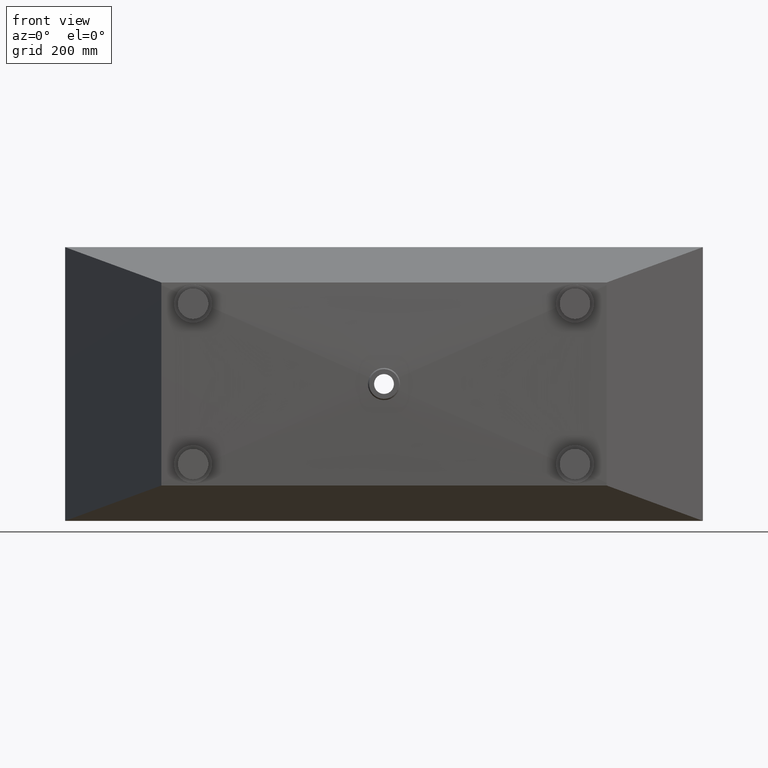
[diagram: clean part render]
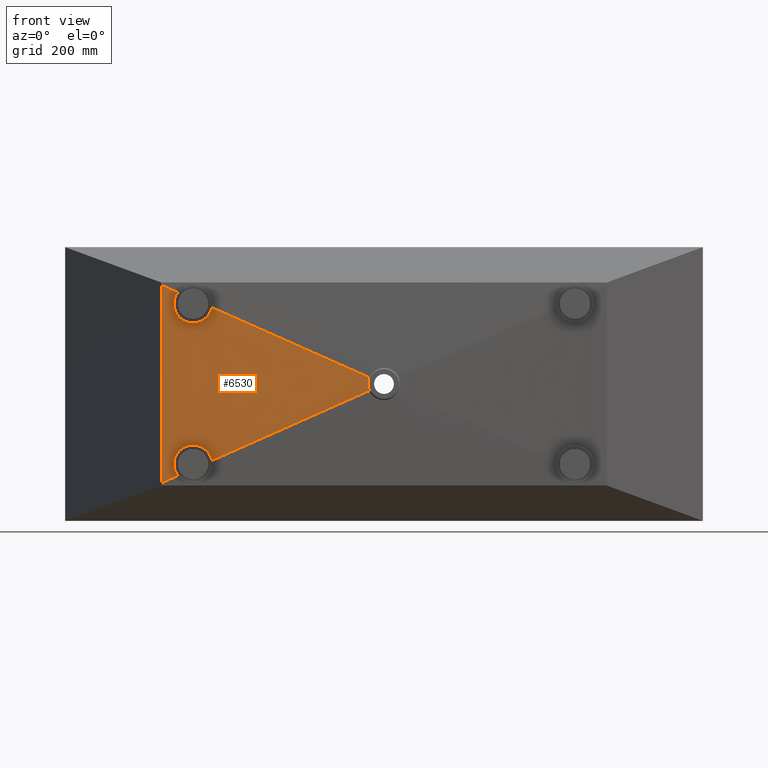
[diagram: same view with one face highlighted and labeled with its STEP entity id]
A machine part, front view. The second image highlights one B-rep face of the part: STEP entity #6530.
In plain terms, the highlighted face is a freeform B-spline surface patch.
Its self-contained STEP definition (entity closure, byte-faithful):
#5 = CARTESIAN_POINT ( 'NONE',  ( 237.2010322996964100, -460.8329563106311800, -526.0003879639913300 ) ) ;
#10 = CARTESIAN_POINT ( 'NONE',  ( 367.6796575570467100, -463.6743400443386900, -150.3225415528780800 ) ) ;
#16 = CARTESIAN_POINT ( 'NONE',  ( 366.1413939707744600, -463.6412992569366900, -154.3133184236420700 ) ) ;
#22 = CARTESIAN_POINT ( 'NONE',  ( 279.8499575433514200, -461.7617334127300500, -584.7988941192347700 ) ) ;
#29 = CARTESIAN_POINT ( 'NONE',  ( 365.5711293351842500, -463.6290297377830700, -155.6235636466717000 ) ) ;
#38 = CARTESIAN_POINT ( 'NONE',  ( 364.6277617553493500, -463.6087033131937000, -157.5583173641319400 ) ) ;
#41 = EDGE_CURVE ( 'NONE', #3185, #5838, #512, .T. ) ;
#56 = CARTESIAN_POINT ( 'NONE',  ( 364.2986238820009800, -463.6016070405503900, -158.1981258727124700 ) ) ;
#79 = VERTEX_POINT ( 'NONE', #4601 ) ;
#99 = CARTESIAN_POINT ( 'NONE',  ( 363.6104416829753600, -463.5867609064701500, -159.4673353281675400 ) ) ;
#105 = CARTESIAN_POINT ( 'NONE',  ( 363.2525170666966700, -463.5790351840458400, -160.0945463501223900 ) ) ;
#114 = CARTESIAN_POINT ( 'NONE',  ( 320.0000000000209200, -462.6388942488803200, -504.9999999999998900 ) ) ;
#121 = CARTESIAN_POINT ( 'NONE',  ( 361.4047456766016900, -463.5391311189343400, -163.1764238580715000 ) ) ;
#124 = CARTESIAN_POINT ( 'NONE',  ( 321.4275818688321900, -462.6700109900559700, -505.0000000000006800 ) ) ;
#126 = CARTESIAN_POINT ( 'NONE',  ( 359.7323141542758500, -463.5029510826457800, -165.4873035181540200 ) ) ;
#129 = CARTESIAN_POINT ( 'NONE',  ( 322.8590431675775100, -462.7012082818981200, -505.0610202311676200 ) ) ;
#135 = CARTESIAN_POINT ( 'NONE',  ( 325.0122171024883600, -462.7481274397483700, -505.2466419548989600 ) ) ;
#142 = CARTESIAN_POINT ( 'NONE',  ( 356.9392641829986100, -463.4424445931889500, -168.7271978910812300 ) ) ;
#145 = CARTESIAN_POINT ( 'NONE',  ( 325.7319070217564000, -462.7638087835483700, -505.3244179458373500 ) ) ;
#154 = CARTESIAN_POINT ( 'NONE',  ( 327.1596300979346100, -462.7949149263242200, -505.5100221520893900 ) ) ;
#160 = CARTESIAN_POINT ( 'NONE',  ( 327.8692465617598400, -462.8103742301684600, -505.6179417049305600 ) ) ;
#161 = CARTESIAN_POINT ( 'NONE',  ( 355.9605843202042500, -463.4212306422149900, -169.7692159706769500 ) ) ;
#170 = CARTESIAN_POINT ( 'NONE',  ( 353.9058592205830100, -463.3766678080913300, -171.7757354023019300 ) ) ;
#171 = CARTESIAN_POINT ( 'NONE',  ( 331.3964397811237200, -462.8872089286859900, -506.2319292278887100 ) ) ;
#177 = CARTESIAN_POINT ( 'NONE',  ( 352.8253078334522000, -463.3532210253880500, -172.7433635361146900 ) ) ;
#181 = CARTESIAN_POINT ( 'NONE',  ( 334.1518052998470100, -462.9472089205224300, -506.9595423573954900 ) ) ;
#184 = EDGE_CURVE ( 'NONE', #2650, #2423, #4306, .T. ) ;
#190 = CARTESIAN_POINT ( 'NONE',  ( 338.1860775668514000, -463.0350175381628300, -508.4027213920022600 ) ) ;
#198 = CARTESIAN_POINT ( 'NONE',  ( 349.4946705520996500, -463.2809166543413000, -175.4760881329206400 ) ) ;
#200 = CARTESIAN_POINT ( 'NONE',  ( 339.5142836204309400, -463.0639198928751600, -508.9427235037167100 ) ) ;
#214 = CARTESIAN_POINT ( 'NONE',  ( 341.4810282171520700, -463.1067054016731400, -509.8437665144407400 ) ) ;
#215 = CARTESIAN_POINT ( 'NONE',  ( 347.1425075637103500, -463.2298115446708400, -177.0882365538066700 ) ) ;
#222 = CARTESIAN_POINT ( 'NONE',  ( 343.4207354134226200, -463.1488947245628100, -179.1984501533512200 ) ) ;
#228 = CARTESIAN_POINT ( 'NONE',  ( 342.1477124715848400, -463.1212087069233100, -179.8502371674336800 ) ) ;
#231 = CARTESIAN_POINT ( 'NONE',  ( 342.1319566181425700, -463.1208640161233900, -510.1592391048115500 ) ) ;
#241 = CARTESIAN_POINT ( 'NONE',  ( 343.4126264596171200, -463.1487162756802700, -510.8144111313512800 ) ) ;
#242 = CARTESIAN_POINT ( 'NONE',  ( 339.5353086776521000, -463.0643773462771800, -181.0481992760617200 ) ) ;
#249 = CARTESIAN_POINT ( 'NONE',  ( 338.1922626587476100, -463.0351521611867700, -181.5950696416638300 ) ) ;
#262 = CARTESIAN_POINT ( 'NONE',  ( 334.1390991685278800, -462.9469323623532100, -183.0449957532316000 ) ) ;
#267 = CARTESIAN_POINT ( 'NONE',  ( 344.0439764514123300, -463.1624449166034200, -511.1548252748436900 ) ) ;
#274 = CARTESIAN_POINT ( 'NONE',  ( 347.1564762602038200, -463.2301151967705000, -512.9200736509905000 ) ) ;
#286 = CARTESIAN_POINT ( 'NONE',  ( 331.3822047071871600, -462.8868988549573400, -183.7707368115656000 ) ) ;
#293 = CARTESIAN_POINT ( 'NONE',  ( 349.5058414673110300, -463.2811591643405800, -514.5330618956237500 ) ) ;
#301 = CARTESIAN_POINT ( 'NONE',  ( 352.8199654139901300, -463.3531050464716300, -517.2522608586442600 ) ) ;
#302 = CARTESIAN_POINT ( 'NONE',  ( 327.1661231518206700, -462.7950577162315500, -184.5043585682894300 ) ) ;
#310 = CARTESIAN_POINT ( 'NONE',  ( 325.7472323500038600, -462.7641438887953900, -184.6894104104717100 ) ) ;
#316 = CARTESIAN_POINT ( 'NONE',  ( 323.5980997169567700, -462.7173128600023200, -184.8755523787269500 ) ) ;
#321 = CARTESIAN_POINT ( 'NONE',  ( 353.8894983995171500, -463.3763128949989900, -518.2088812448356500 ) ) ;
#330 = CARTESIAN_POINT ( 'NONE',  ( 355.4393762925137100, -463.4099267330025200, -519.7215116784394700 ) ) ;
#331 = CARTESIAN_POINT ( 'NONE',  ( 322.8765295050008000, -462.7015881706786300, -184.9223959541250800 ) ) ;
#349 = CARTESIAN_POINT ( 'NONE',  ( 321.4355953500706800, -462.6701846451877000, -184.9845886827573600 ) ) ;
#352 = CARTESIAN_POINT ( 'NONE',  ( 355.9451322948932000, -463.4208926444138100, -520.2370311925091100 ) ) ;
#359 = CARTESIAN_POINT ( 'NONE',  ( 356.9294472962770300, -463.4422288099104300, -521.2845368058000300 ) ) ;
#381 = CARTESIAN_POINT ( 'NONE',  ( 357.4089114093478100, -463.4526186950998900, -521.8173993759836500 ) ) ;
#383 = CARTESIAN_POINT ( 'NONE',  ( 359.7436658186111300, -463.5031968952354200, -524.5266145729586900 ) ) ;
#398 = CARTESIAN_POINT ( 'NONE',  ( 361.4126235902447200, -463.5393012514528000, -526.8366939337159900 ) ) ;
#401 = CARTESIAN_POINT ( 'NONE',  ( 363.6182828391563400, -463.5869341799212900, -530.5155211926824000 ) ) ;
#417 = CARTESIAN_POINT ( 'NONE',  ( 364.3036078200164500, -463.6017187848984800, -531.7776053099895500 ) ) ;
#419 = CARTESIAN_POINT ( 'NONE',  ( 365.5711564199362400, -463.6290304129246400, -534.3757670795215500 ) ) ;
#420 = CARTESIAN_POINT ( 'NONE',  ( 319.9999999999998900, -462.6388942488798600, -184.9999999999999400 ) ) ;
#430 = CARTESIAN_POINT ( 'NONE',  ( 320.7169182877117400, -462.6545207858163200, -184.9999999999999400 ) ) ;
#438 = CARTESIAN_POINT ( 'NONE',  ( 366.1441429205242500, -463.6413584092392700, -535.6929371179463700 ) ) ;
#444 = CARTESIAN_POINT ( 'NONE',  ( 367.6860918010823400, -463.6744780322872500, -539.6959135932844400 ) ) ;
#466 = CARTESIAN_POINT ( 'NONE',  ( 369.0380775455389500, -463.7032759001562600, -545.2395209831836400 ) ) ;
#472 = CARTESIAN_POINT ( 'NONE',  ( 319.9999999999998900, -462.6388942488798600, -184.9999999999999400 ) ) ;
#498 = CARTESIAN_POINT ( 'NONE',  ( 317.6944299736040300, -462.5886401602418200, -184.9999999999999700 ) ) ;
#512 = B_SPLINE_CURVE_WITH_KNOTS ( 'NONE', 3,
 ( #3511, #3719, #5, #3504, #3490, #3501, #3482, #3466, #3475, #1492, #3437, #5993, #3412 ),
 .UNSPECIFIED., .F., .F.,
 ( 4, 3, 3, 3, 4 ),
 ( 1.330032699261621200, 1.446604748638027300, 1.588747786810424100, 1.843791695343532300, 1.847462874359748800 ),
 .UNSPECIFIED. ) ;
#519 = CARTESIAN_POINT ( 'NONE',  ( 368.4795302608622500, -463.6914370770550700, -542.4332975374248900 ) ) ;
#558 = CARTESIAN_POINT ( 'NONE',  ( 315.4069720004361600, -462.5387704411723500, -184.8412925697443300 ) ) ;
#585 = CARTESIAN_POINT ( 'NONE',  ( 310.8676145790246300, -462.4397906257924000, -184.2122940712012600 ) ) ;
#601 = B_SPLINE_CURVE_WITH_KNOTS ( 'NONE', 3,
 ( #2812, #2833, #1873, #1824, #1776, #1771, #1698, #1674, #1648, #1623, #1609, #1514, #1482, #1458, #1402, #1318 ),
 .UNSPECIFIED., .F., .F.,
 ( 4, 2, 2, 2, 2, 2, 2, 4 ),
 ( 0.06675442703485129400, 0.07118424097665744500, 0.07561405491846359700, 0.08447368280207606700, 0.09333331068568853600, 0.09776312462749466000, 0.09997803159839768700, 0.1021929385693007300 ),
 .UNSPECIFIED. ) ;
#628 = CARTESIAN_POINT ( 'NONE',  ( 308.6157116668571200, -462.3906804348561100, -183.7420333596863600 ) ) ;
#662 = CARTESIAN_POINT ( 'NONE',  ( 305.2655751916958600, -462.3176107291509400, -182.7937619861699000 ) ) ;
#690 = B_SPLINE_CURVE_WITH_KNOTS ( 'NONE', 3,
 ( #420, #430, #349, #331, #316, #310, #302, #286, #262, #249, #242, #228, #222, #215, #198, #177, #170, #161, #142, #126, #121, #105, #99, #56, #38, #29, #16, #10, #7402, #7125 ),
 .UNSPECIFIED., .F., .F.,
 ( 4, 2, 2, 2, 2, 2, 2, 2, 2, 2, 2, 2, 2, 2, 4 ),
 ( 0.1147921454110636400, 0.1169295362494050800, 0.1190669270877465200, 0.1233417087644293900, 0.1318912721177951400, 0.1361660537944779400, 0.1404408354711607600, 0.1489903988245263000, 0.1532651805012090800, 0.1575399621778918700, 0.1660895255312574400, 0.1682269163695988000, 0.1703643072079401300, 0.1746390888846227600, 0.1831886522379880000 ),
 .UNSPECIFIED. ) ;
#703 = CARTESIAN_POINT ( 'NONE',  ( 784.7180673496814100, -472.7500835060155900, -360.9885333348442500 ) ) ;
#712 = CARTESIAN_POINT ( 'NONE',  ( 773.2328895945329400, -472.5002570224570500, -366.1707839462608800 ) ) ;
#717 = CARTESIAN_POINT ( 'NONE',  ( 304.1621616128223900, -462.2935427076317300, -182.4393251190747900 ) ) ;
#719 = CARTESIAN_POINT ( 'NONE',  ( 761.7551842865135500, -472.2504438501011900, -371.3695066994048400 ) ) ;
#739 = CARTESIAN_POINT ( 'NONE',  ( 750.2776998677486500, -472.0006510449208600, -376.5687173355437400 ) ) ;
#746 = CARTESIAN_POINT ( 'NONE',  ( 301.9944563275985300, -462.2462575244161900, -181.6596944867074500 ) ) ;
#758 = CARTESIAN_POINT ( 'NONE',  ( 738.8002154489835200, -471.7508582397405200, -381.7679279716827000 ) ) ;
#774 = CARTESIAN_POINT ( 'NONE',  ( 300.9280227261256200, -462.2229936453761600, -181.2338988230039000 ) ) ;
#777 = CARTESIAN_POINT ( 'NONE',  ( 727.3239636412539500, -471.5010792446590800, -386.9698563129040800 ) ) ;
#789 = CARTESIAN_POINT ( 'NONE',  ( 715.8480406279710500, -471.2513058150577800, -392.1725096822102000 ) ) ;
#805 = CARTESIAN_POINT ( 'NONE',  ( 297.7802142879344300, -462.1543221920413200, -179.8501504228652800 ) ) ;
#806 = CARTESIAN_POINT ( 'NONE',  ( 274.0743887593955600, -461.6362558608090000, -574.9051447793840500 ) ) ;
#808 = CARTESIAN_POINT ( 'NONE',  ( 692.8961946014052300, -470.7517589558551100, -402.5778164208222700 ) ) ;
#829 = CARTESIAN_POINT ( 'NONE',  ( 669.9457904778005300, -470.2522339027427700, -412.9863025899988400 ) ) ;
#833 = CARTESIAN_POINT ( 'NONE',  ( 295.7500887966450000, -462.1100295347293400, -178.7863382544956900 ) ) ;
#834 = CARTESIAN_POINT ( 'NONE',  ( 646.9956082594682100, -469.7527136712340100, -423.3952781359363400 ) ) ;
#853 = CARTESIAN_POINT ( 'NONE',  ( 601.0952438228034700, -468.7536732082164100, -444.2132292278113800 ) ) ;
#860 = CARTESIAN_POINT ( 'NONE',  ( 292.8088929606501000, -462.0458551171713600, -176.9758156651130600 ) ) ;
#862 = CARTESIAN_POINT ( 'NONE',  ( 555.1961104742762200, -467.7546551636310700, -465.0338950808553600 ) ) ;
#870 = CARTESIAN_POINT ( 'NONE',  ( 291.8454369896068700, -462.0248325655840600, -176.3360617518219400 ) ) ;
#883 = CARTESIAN_POINT ( 'NONE',  ( 509.2970797526143100, -466.7556397223901300, -485.8547872790347200 ) ) ;
#888 = CARTESIAN_POINT ( 'NONE',  ( 289.9561371971887000, -461.9836068816525800, -174.9839433690886500 ) ) ;
#912 = CARTESIAN_POINT ( 'NONE',  ( 417.4990183092904200, -464.7576088399082400, -527.4965716753935100 ) ) ;
#918 = CARTESIAN_POINT ( 'NONE',  ( 289.0405577357824400, -461.9636277258096600, -174.2789723270701600 ) ) ;
#922 = CARTESIAN_POINT ( 'NONE',  ( 325.7017943944014200, -462.7595949166242800, -569.1402030479840700 ) ) ;
#928 = CARTESIAN_POINT ( 'NONE',  ( 286.3786482551742000, -461.9055397320013300, -172.0796930459159700 ) ) ;
#946 = CARTESIAN_POINT ( 'NONE',  ( 233.9046069069738700, -460.7615820030363200, -610.7839147660157600 ) ) ;
#952 = CARTESIAN_POINT ( 'NONE',  ( 284.7167577536364400, -461.8692719071490300, -170.5014059128676800 ) ) ;
#956 = CARTESIAN_POINT ( 'NONE',  ( 784.6282333241558700, -472.7500702563675600, -360.6755725123836100 ) ) ;
#967 = CARTESIAN_POINT ( 'NONE',  ( 282.3909931451618100, -461.8185135947044800, -167.9678154370923800 ) ) ;
#979 = CARTESIAN_POINT ( 'NONE',  ( 773.1451184119388200, -472.5002474341491200, -365.7488671064531300 ) ) ;
#984 = CARTESIAN_POINT ( 'NONE',  ( 761.6693707888988500, -472.2504353907608000, -370.8387436116207700 ) ) ;
#996 = CARTESIAN_POINT ( 'NONE',  ( 281.6436821349840300, -461.8022035383484600, -167.0954938522011700 ) ) ;
#997 = CARTESIAN_POINT ( 'NONE',  ( 273.0461893232332500, -461.6139215969388400, -572.1952231073732900 ) ) ;
#1008 = CARTESIAN_POINT ( 'NONE',  ( 750.1938344417660600, -472.0006436521828200, -375.9290969266794500 ) ) ;
#1012 = CARTESIAN_POINT ( 'NONE',  ( 738.7182980946330400, -471.7508519136048300, -381.0194502417381800 ) ) ;
#1018 = CARTESIAN_POINT ( 'NONE',  ( 279.8499575433514200, -461.7617334127300500, -584.7988941192347700 ) ) ;
#1032 = CARTESIAN_POINT ( 'NONE',  ( 727.2439732301329500, -471.5010735596837900, -386.1125310430535900 ) ) ;
#1035 = CARTESIAN_POINT ( 'NONE',  ( 715.7699709115906900, -471.2513006465787300, -391.2063381326205400 ) ) ;
#1060 = CARTESIAN_POINT ( 'NONE',  ( 692.8219662745062800, -470.7517548203685500, -401.3939523117543900 ) ) ;
#1063 = CARTESIAN_POINT ( 'NONE',  ( 669.8753769848810900, -470.2522302657188200, -411.5847533123237600 ) ) ;
#1081 = CARTESIAN_POINT ( 'NONE',  ( 646.9290050366593100, -469.7527104371280900, -421.7760437763781700 ) ) ;
#1087 = CARTESIAN_POINT ( 'NONE',  ( 601.0362611402156300, -468.7536707799465600, -442.1586247044869500 ) ) ;
#1097 = CARTESIAN_POINT ( 'NONE',  ( 280.5652834576323500, -461.7786667800037900, -165.7446758426208100 ) ) ;
#1105 = CARTESIAN_POINT ( 'NONE',  ( 555.1447244220620400, -467.7546530485657300, -462.5439239795825300 ) ) ;
#1109 = CARTESIAN_POINT ( 'NONE',  ( 509.2532880985717200, -466.7556378710698400, -482.9294493722173900 ) ) ;
#1116 = CARTESIAN_POINT ( 'NONE',  ( 280.2129182373635100, -461.7709760532691800, -165.2873409029268100 ) ) ;
#1127 = CARTESIAN_POINT ( 'NONE',  ( 417.4704154515910700, -464.7576075160780000, -523.7005001574870000 ) ) ;
#1133 = CARTESIAN_POINT ( 'NONE',  ( 325.6883635111445900, -462.7595937650812100, -564.4733991343860000 ) ) ;
#1142 = CARTESIAN_POINT ( 'NONE',  ( 279.5225784267792600, -461.7559084318421000, -164.3583588938583700 ) ) ;
#1160 = CARTESIAN_POINT ( 'NONE',  ( 233.9063471779735200, -460.7615810048034700, -605.2463783145417400 ) ) ;
#1175 = CARTESIAN_POINT ( 'NONE',  ( 279.1839793010530000, -461.7485179051803400, -163.8857918474790300 ) ) ;
#1186 = CARTESIAN_POINT ( 'NONE',  ( 784.5377015171833400, -472.7500529827800100, -360.3614360796402100 ) ) ;
#1199 = CARTESIAN_POINT ( 'NONE',  ( 277.5360060074771700, -461.7125472743470000, -161.4989334850825700 ) ) ;
#1219 = CARTESIAN_POINT ( 'NONE',  ( 276.3645311958384200, -461.6869750587779900, -159.5193291624092900 ) ) ;
#1221 = CARTESIAN_POINT ( 'NONE',  ( 773.0568500371141500, -472.5002325538346800, -365.3262094230558400 ) ) ;
#1233 = CARTESIAN_POINT ( 'NONE',  ( 761.5831137467423600, -472.2504226787481200, -370.3073517799307400 ) ) ;
#1245 = CARTESIAN_POINT ( 'NONE',  ( 274.3045999554112800, -461.6420029783475900, -155.4250350085018500 ) ) ;
#1256 = CARTESIAN_POINT ( 'NONE',  ( 750.1095783296109400, -472.0006323932786400, -375.2889573647452700 ) ) ;
#1271 = CARTESIAN_POINT ( 'NONE',  ( 738.6360429124793000, -471.7508421078092100, -380.2705629495598600 ) ) ;
#1282 = CARTESIAN_POINT ( 'NONE',  ( 727.1636756828430600, -471.5010647507497200, -385.2548566758638300 ) ) ;
#1291 = CARTESIAN_POINT ( 'NONE',  ( 715.6916191768118600, -471.2512926402157500, -390.2398655184089800 ) ) ;
#1298 = CARTESIAN_POINT ( 'NONE',  ( 692.7475061647496700, -470.7517484191477600, -400.2098832034992600 ) ) ;
#1310 = CARTESIAN_POINT ( 'NONE',  ( 669.8047570333765200, -470.2522247164054600, -410.1830396542744100 ) ) ;
#1318 = CARTESIAN_POINT ( 'NONE',  ( 781.3743007477737600, -472.6789743563583700, -327.8267374103408500 ) ) ;
#1319 = CARTESIAN_POINT ( 'NONE',  ( 646.8622171113712500, -469.7527055651455600, -420.1566776491789600 ) ) ;
#1324 = CARTESIAN_POINT ( 'NONE',  ( 273.4161673888805800, -461.6226036399289700, -153.3103337876790400 ) ) ;
#1329 = CARTESIAN_POINT ( 'NONE',  ( 600.9771372673607200, -468.7536672626256400, -440.1039536389880600 ) ) ;
#1331 = B_SPLINE_CURVE_WITH_KNOTS ( 'NONE', 3,
 ( #4957, #4892, #4684, #4600 ),
 .UNSPECIFIED., .F., .F.,
 ( 4, 4 ),
 ( 0.2055950583257011000, 0.2522598073841062500 ),
 .UNSPECIFIED. ) ;
#1343 = CARTESIAN_POINT ( 'NONE',  ( 555.0932201120405100, -467.7546500898753300, -460.0539055895668500 ) ) ;
#1352 = CARTESIAN_POINT ( 'NONE',  ( 509.2093995372802600, -466.7556353744639600, -480.0040798631866300 ) ) ;
#1357 = CARTESIAN_POINT ( 'NONE',  ( 272.4860994057043500, -461.6022892083389600, -150.5808171103192900 ) ) ;
#1360 = CARTESIAN_POINT ( 'NONE',  ( 417.4417583877598800, -464.7576059436412900, -519.9044284104261400 ) ) ;
#1370 = CARTESIAN_POINT ( 'NONE',  ( 325.6749074331201000, -462.7595925048303200, -559.8065957067635700 ) ) ;
#1379 = CARTESIAN_POINT ( 'NONE',  ( 233.9080907198226400, -460.7615800187542200, -599.7088418294162000 ) ) ;
#1382 = CARTESIAN_POINT ( 'NONE',  ( 272.3091498991260600, -461.5984239385950300, -150.0305874585876000 ) ) ;
#1394 = CARTESIAN_POINT ( 'NONE',  ( 784.4503665560516800, -472.7500357736511200, -360.0449033921282800 ) ) ;
#1402 = CARTESIAN_POINT ( 'NONE',  ( 781.0748498063181800, -472.6765192478980600, -328.5009993731032400 ) ) ;
#1403 = CARTESIAN_POINT ( 'NONE',  ( 772.9717182080561300, -472.5002176026469600, -364.9012552127891200 ) ) ;
#1409 = CARTESIAN_POINT ( 'NONE',  ( 271.9736356578704300, -461.5910941863992300, -148.9213530510254200 ) ) ;
#1412 = CARTESIAN_POINT ( 'NONE',  ( 761.4999260381860000, -472.2504099362603800, -369.7737240101654400 ) ) ;
#1423 = CARTESIAN_POINT ( 'NONE',  ( 750.0283247766902800, -472.0006211049577600, -374.6466425294378300 ) ) ;
#1439 = CARTESIAN_POINT ( 'NONE',  ( 738.5567235151944500, -471.7508322736551300, -379.5195610487102200 ) ) ;
#1458 = CARTESIAN_POINT ( 'NONE',  ( 780.7927915702856600, -472.6742021189163000, -329.1833718551610000 ) ) ;
#1459 = CARTESIAN_POINT ( 'NONE',  ( 727.0862463779955100, -471.5010559194254300, -384.3951226235177500 ) ) ;
#1464 = CARTESIAN_POINT ( 'NONE',  ( 271.8148840802325600, -461.5876256194995900, -148.3615235483214300 ) ) ;
#1467 = CARTESIAN_POINT ( 'NONE',  ( 715.6160679966121700, -471.2512846160337900, -389.2713867256532000 ) ) ;
#1482 = CARTESIAN_POINT ( 'NONE',  ( 780.2638616090356400, -472.6697721715208300, -330.5645245994534200 ) ) ;
#1483 = CARTESIAN_POINT ( 'NONE',  ( 692.6757112338455000, -470.7517420092503900, -399.0239149299240500 ) ) ;
#1492 = CARTESIAN_POINT ( 'NONE',  ( 237.2012142690824400, -460.8332890546513500, -89.95609146891905500 ) ) ;
#1494 = CARTESIAN_POINT ( 'NONE',  ( 669.7366661647524800, -470.2522191655610900, -408.7795274716560200 ) ) ;
#1502 = CARTESIAN_POINT ( 'NONE',  ( 271.3698528409977400, -461.5779006967069900, -146.6812507133783800 ) ) ;
#1514 = CARTESIAN_POINT ( 'NONE',  ( 780.0165938537193100, -472.6676732623644700, -331.2647717979045300 ) ) ;
#1515 = CARTESIAN_POINT ( 'NONE',  ( 646.7978221080501300, -469.7527006969013400, -418.5356127460547100 ) ) ;
#1520 = CARTESIAN_POINT ( 'NONE',  ( 271.1136252232123000, -461.5722995347761600, -145.5566861025444300 ) ) ;
#1525 = CARTESIAN_POINT ( 'NONE',  ( 600.9201339946455400, -468.7536637595818500, -438.0477832948520800 ) ) ;
#1536 = CARTESIAN_POINT ( 'NONE',  ( 270.4634089622521700, -461.5580783207761300, -142.1701596562203900 ) ) ;
#1552 = CARTESIAN_POINT ( 'NONE',  ( 279.8499575433601800, -461.7617334127303900, -105.2011058807697300 ) ) ;
#1555 = CARTESIAN_POINT ( 'NONE',  ( 555.0435635842554800, -467.7546471504400100, -457.5625822069144400 ) ) ;
#1560 = CARTESIAN_POINT ( 'NONE',  ( 270.1873412926288400, -461.5520286746968300, -139.8954243097159100 ) ) ;
#1563 = CARTESIAN_POINT ( 'NONE',  ( 509.1670859218177200, -466.7556329010438400, -477.0775992572536100 ) ) ;
#1570 = CARTESIAN_POINT ( 'NONE',  ( 270.0080894799334000, -461.5480706192963100, -136.4578817582260800 ) ) ;
#1581 = CARTESIAN_POINT ( 'NONE',  ( 265.6337348741096200, -461.4522587537813900, -98.89565893031071700 ) ) ;
#1585 = CARTESIAN_POINT ( 'NONE',  ( 417.4141305969421900, -464.7576044022515000, -516.1076333579320600 ) ) ;
#1598 = CARTESIAN_POINT ( 'NONE',  ( 269.9876177290422600, -461.5476069885066900, -135.3077794531337800 ) ) ;
#1609 = CARTESIAN_POINT ( 'NONE',  ( 779.3340721109764200, -472.6618261211459100, -333.3724697959404500 ) ) ;
#1610 = CARTESIAN_POINT ( 'NONE',  ( 325.6619346708847000, -462.7595912784123000, -555.1394533224562300 ) ) ;
#1617 = CARTESIAN_POINT ( 'NONE',  ( 233.9097716162848100, -460.7615790689311000, -594.1713506029053600 ) ) ;
#1623 = CARTESIAN_POINT ( 'NONE',  ( 778.9562727219957900, -472.6585180528370500, -334.7907326747787200 ) ) ;
#1636 = CARTESIAN_POINT ( 'NONE',  ( 784.3630315949200200, -472.7500185645221800, -359.7283707046164000 ) ) ;
#1641 = CARTESIAN_POINT ( 'NONE',  ( 772.8865863789981200, -472.5002026514591800, -364.4763010025223500 ) ) ;
#1648 = CARTESIAN_POINT ( 'NONE',  ( 778.0448985584034700, -472.6504084924865200, -339.0832779676814000 ) ) ;
#1653 = CARTESIAN_POINT ( 'NONE',  ( 237.2012241985497400, -460.8333072113915100, -86.28491245276119100 ) ) ;
#1666 = CARTESIAN_POINT ( 'NONE',  ( 761.4167383296295400, -472.2503971937726400, -369.2400962404001300 ) ) ;
#1670 = CARTESIAN_POINT ( 'NONE',  ( 749.9470712237696300, -472.0006098166368800, -374.0043276941303200 ) ) ;
#1674 = CARTESIAN_POINT ( 'NONE',  ( 777.7342067692217100, -472.6475324856865500, -341.9954632692075100 ) ) ;
#1683 = CARTESIAN_POINT ( 'NONE',  ( 320.0000000000209200, -462.6388942488803200, -504.9999999999998900 ) ) ;
#1688 = CARTESIAN_POINT ( 'NONE',  ( 738.4774041179094900, -471.7508224395011200, -378.7685591478605700 ) ) ;
#1693 = CARTESIAN_POINT ( 'NONE',  ( 727.0088170731479500, -471.5010470881011300, -383.5353885711717200 ) ) ;
#1698 = CARTESIAN_POINT ( 'NONE',  ( 777.7294687924610300, -472.6475007929515200, -347.9246995712068200 ) ) ;
#1702 = CARTESIAN_POINT ( 'NONE',  ( 270.0169443587219000, -461.5482190326510500, -133.5761229291267700 ) ) ;
#1713 = CARTESIAN_POINT ( 'NONE',  ( 715.5405168164123800, -471.2512765918517600, -388.3029079328974300 ) ) ;
#1718 = CARTESIAN_POINT ( 'NONE',  ( 692.6039163029413400, -470.7517355993530800, -397.8379466563488900 ) ) ;
#1727 = CARTESIAN_POINT ( 'NONE',  ( 270.0367346989759200, -461.5486411599117700, -132.9978192589948400 ) ) ;
#1743 = CARTESIAN_POINT ( 'NONE',  ( 669.6685752961284400, -470.2522136147167100, -407.3760152890376400 ) ) ;
#1748 = CARTESIAN_POINT ( 'NONE',  ( 646.7334271047290000, -469.7526958286571200, -416.9145478429304600 ) ) ;
#1756 = CARTESIAN_POINT ( 'NONE',  ( 270.0966459310021700, -461.5499281219940100, -131.8390096608171100 ) ) ;
#1767 = CARTESIAN_POINT ( 'NONE',  ( 600.8631307219303600, -468.7536602565380100, -435.9916129507160500 ) ) ;
#1771 = CARTESIAN_POINT ( 'NONE',  ( 778.0358389270929800, -472.6503488896349800, -350.8504610623339800 ) ) ;
#1773 = CARTESIAN_POINT ( 'NONE',  ( 554.9939070564703300, -467.7546442110046900, -455.0712588242619700 ) ) ;
#1776 = CARTESIAN_POINT ( 'NONE',  ( 778.9477902926121300, -472.6584404330142200, -355.1777521933071300 ) ) ;
#1779 = CARTESIAN_POINT ( 'NONE',  ( 270.1367853457906600, -461.5507933683052800, -131.2590456068503200 ) ) ;
#1788 = CARTESIAN_POINT ( 'NONE',  ( 509.1247723063551100, -466.7556304276237100, -474.1511186513206400 ) ) ;
#1794 = CARTESIAN_POINT ( 'NONE',  ( 417.3865028061246100, -464.7576028608617100, -512.3108383054379800 ) ) ;
#1799 = ORIENTED_EDGE ( 'NONE', *, *, #2414, .T. ) ;
#1812 = CARTESIAN_POINT ( 'NONE',  ( 325.6489619086493100, -462.7595900519942800, -550.4723109381490100 ) ) ;
#1824 = CARTESIAN_POINT ( 'NONE',  ( 779.3307015094368400, -472.6617987439605600, -356.6149949427696100 ) ) ;
#1830 = CARTESIAN_POINT ( 'NONE',  ( 270.3866478472421600, -461.5561903575639900, -128.3762597469355500 ) ) ;
#1846 = CARTESIAN_POINT ( 'NONE',  ( 233.9114525127469900, -460.7615781191079800, -588.6338593763945300 ) ) ;
#1856 = CARTESIAN_POINT ( 'NONE',  ( 270.7439244898454300, -461.5639353592482600, -126.1068115772326300 ) ) ;
#1864 = CARTESIAN_POINT ( 'NONE',  ( 784.2781502352049800, -472.7500016318299500, -359.4101433074868600 ) ) ;
#1873 = CARTESIAN_POINT ( 'NONE',  ( 780.2395191419601600, -472.6695925054219700, -359.4229288681420900 ) ) ;
#1875 = CARTESIAN_POINT ( 'NONE',  ( 271.7637064051635900, -461.5860674870104400, -121.6392457092553100 ) ) ;
#1887 = CARTESIAN_POINT ( 'NONE',  ( 772.8038500809645900, -472.5001879854747200, -364.0496970321289600 ) ) ;
#1901 = CARTESIAN_POINT ( 'NONE',  ( 272.4262180415844300, -461.6004547709214300, -119.4411294982466200 ) ) ;
#1905 = CARTESIAN_POINT ( 'NONE',  ( 761.3358919857338400, -472.2503846984515100, -368.7048562290456200 ) ) ;
#1918 = CARTESIAN_POINT ( 'NONE',  ( 749.8681053105762000, -472.0005987540465100, -373.3604382797954600 ) ) ;
#1927 = CARTESIAN_POINT ( 'NONE',  ( 738.4003186354186700, -471.7508128096415000, -378.0160203305453000 ) ) ;
#1936 = CARTESIAN_POINT ( 'NONE',  ( 726.9335687926162600, -471.5010384431707300, -382.6741542534397800 ) ) ;
#1946 = CARTESIAN_POINT ( 'NONE',  ( 715.4670940240796400, -471.2512687394668100, -387.3329652925832500 ) ) ;
#1954 = CARTESIAN_POINT ( 'NONE',  ( 692.5341444870060700, -470.7517293320589700, -396.6505873708703700 ) ) ;
#1958 = CARTESIAN_POINT ( 'NONE',  ( 273.6550537902275000, -461.6271471732827600, -116.1988894984205800 ) ) ;
#1962 = CARTESIAN_POINT ( 'NONE',  ( 669.6024033403298300, -470.2522081886882000, -405.9711838573284700 ) ) ;
#1970 = CARTESIAN_POINT ( 'NONE',  ( 646.6708470016270700, -469.7526910712902600, -415.2922353177236800 ) ) ;
#1981 = CARTESIAN_POINT ( 'NONE',  ( 600.8077343242214300, -468.7536568364943700, -433.9343382385142100 ) ) ;
#1987 = CARTESIAN_POINT ( 'NONE',  ( 274.1057223312986900, -461.6369373692349400, -115.1240891701736600 ) ) ;
#1990 = CARTESIAN_POINT ( 'NONE',  ( 554.9456503569623500, -467.7546413419611300, -452.5789734878827600 ) ) ;
#2001 = CARTESIAN_POINT ( 'NONE',  ( 509.0836515665097900, -466.7556280144070200, -471.2238184509969300 ) ) ;
#2011 = CARTESIAN_POINT ( 'NONE',  ( 417.3596539856048400, -464.7576013592988000, -508.5135083772250900 ) ) ;
#2015 = CARTESIAN_POINT ( 'NONE',  ( 275.0734142227300400, -461.6579602365276900, -113.0241395061614000 ) ) ;
#2019 = CARTESIAN_POINT ( 'NONE',  ( 325.6363549061624700, -462.7595888581124100, -545.8049178605072000 ) ) ;
#2034 = CARTESIAN_POINT ( 'NONE',  ( 233.9130859932797600, -460.7615771955484000, -583.0964016212368500 ) ) ;
#2042 = CARTESIAN_POINT ( 'NONE',  ( 784.1957948296801500, -472.7499850171330400, -359.0903175575568300 ) ) ;
#2047 = CARTESIAN_POINT ( 'NONE',  ( 275.5913507172000400, -461.6692127379157000, -111.9958722990020200 ) ) ;
#2049 = CARTESIAN_POINT ( 'NONE',  ( 772.7235794809144000, -472.5001736341186500, -363.6215379412005900 ) ) ;
#2064 = CARTESIAN_POINT ( 'NONE',  ( 761.2574555011677800, -472.2503724751172700, -368.1680965559237400 ) ) ;
#2071 = CARTESIAN_POINT ( 'NONE',  ( 749.7914938633679200, -472.0005879382827100, -372.7150648489240400 ) ) ;
#2077 = CARTESIAN_POINT ( 'NONE',  ( 277.2453121425800800, -461.7051464330386900, -108.9748437883509500 ) ) ;
#2079 = B_SPLINE_CURVE_WITH_KNOTS ( 'NONE', 3,
 ( #6862, #6886, #6811, #6800, #6786, #6778, #6765, #6741, #6734, #6726 ),
 .UNSPECIFIED., .F., .F.,
 ( 4, 2, 2, 2, 4 ),
 ( 0.3498468677077289400, 0.5754655301074598200, 0.6882748613073252900, 0.7446795269072581400, 0.8010841925071909800 ),
 .UNSPECIFIED. ) ;
#2081 = CARTESIAN_POINT ( 'NONE',  ( 738.3255322255681700, -471.7508034014481400, -377.2620331419242900 ) ) ;
#2101 = CARTESIAN_POINT ( 'NONE',  ( 726.8605651034484900, -471.5010299998604600, -381.8115061714369700 ) ) ;
#2111 = CARTESIAN_POINT ( 'NONE',  ( 715.3958616150691800, -471.2512610724001000, -386.3616432589624900 ) ) ;
#2139 = CARTESIAN_POINT ( 'NONE',  ( 692.4664546383104400, -470.7517232174793100, -395.4619174340134600 ) ) ;
#2151 = CARTESIAN_POINT ( 'NONE',  ( 669.5382060926231100, -470.2522028960676200, -404.5651094248362400 ) ) ;
#2171 = CARTESIAN_POINT ( 'NONE',  ( 646.6101345489435100, -469.7526864321589500, -413.6687473067891000 ) ) ;
#2176 = CARTESIAN_POINT ( 'NONE',  ( 279.8499575433601800, -461.7617334127303900, -105.2011058807697300 ) ) ;
#2179 = CARTESIAN_POINT ( 'NONE',  ( 600.7539914615845200, -468.7536535043416300, -431.8760230706947700 ) ) ;
#2186 = CARTESIAN_POINT ( 'NONE',  ( 278.4810250501382100, -461.7319936494946500, -107.0455601582589100 ) ) ;
#2195 = CARTESIAN_POINT ( 'NONE',  ( 251.4174889398890100, -461.1427833032752200, -92.59026447377495100 ) ) ;
#2207 = CARTESIAN_POINT ( 'NONE',  ( 554.8988341257422700, -467.7546385473236200, -450.0857818784958200 ) ) ;
#2221 = CARTESIAN_POINT ( 'NONE',  ( 509.0437583273539400, -466.7556256646525400, -468.2957461060838700 ) ) ;
#2229 = CARTESIAN_POINT ( 'NONE',  ( 417.3336067305773400, -464.7575998993104900, -504.7156745612599000 ) ) ;
#2250 = CARTESIAN_POINT ( 'NONE',  ( 325.6241242747094600, -462.7595876980562400, -541.1372886137140800 ) ) ;
#2255 = CARTESIAN_POINT ( 'NONE',  ( 233.9146706869758000, -460.7615762991224000, -577.5589753982653700 ) ) ;
#2276 = CARTESIAN_POINT ( 'NONE',  ( 784.0310840186305100, -472.7499517877392900, -358.4506660576967100 ) ) ;
#2280 = CARTESIAN_POINT ( 'NONE',  ( 772.5630382808141100, -472.5001449314066200, -362.7652197593438400 ) ) ;
#2297 = CARTESIAN_POINT ( 'NONE',  ( 761.1005825320356700, -472.2503480284487400, -367.0945772096800400 ) ) ;
#2300 = CARTESIAN_POINT ( 'NONE',  ( 749.6382709689513600, -472.0005663067551000, -371.4243179871811000 ) ) ;
#2316 = CARTESIAN_POINT ( 'NONE',  ( 738.1759594058671600, -471.7507845850614100, -375.7540587646822100 ) ) ;
#2323 = CARTESIAN_POINT ( 'NONE',  ( 726.7145577251128500, -471.5010131132399900, -380.0862100074317600 ) ) ;
#2340 = CARTESIAN_POINT ( 'NONE',  ( 715.2533967970482500, -471.2512457382667300, -384.4189991917210100 ) ) ;
#2344 = CARTESIAN_POINT ( 'NONE',  ( 692.3310749409189400, -470.7517109883200400, -393.0845775602995800 ) ) ;
#2357 = CARTESIAN_POINT ( 'NONE',  ( 669.4098115972096800, -470.2521923108265000, -401.7529605598519400 ) ) ;
#2362 = CARTESIAN_POINT ( 'NONE',  ( 646.4887096435766100, -469.7526771538963400, -410.4217712849198800 ) ) ;
#2378 = CARTESIAN_POINT ( 'NONE',  ( 600.6465057363105900, -468.7536468400360800, -427.7593927350558800 ) ) ;
#2382 = CARTESIAN_POINT ( 'NONE',  ( 554.8052016633021100, -467.7546329580486600, -445.0993986597220000 ) ) ;
#2399 = CARTESIAN_POINT ( 'NONE',  ( 508.9639718490422000, -466.7556209651437500, -462.4396014162578000 ) ) ;
#2400 = ORIENTED_EDGE ( 'NONE', *, *, #184, .F. ) ;
#2414 = EDGE_CURVE ( 'NONE', #7039, #4533, #601, .T. ) ;
#2422 = CARTESIAN_POINT ( 'NONE',  ( 417.2815122205224200, -464.7575969793339800, -497.1200069293293500 ) ) ;
#2423 = VERTEX_POINT ( 'NONE', #1018 ) ;
#2451 = CARTESIAN_POINT ( 'NONE',  ( 325.5996630118034400, -462.7595853779438900, -531.8020301201278200 ) ) ;
#2468 = CARTESIAN_POINT ( 'NONE',  ( 233.9178400743678900, -460.7615745062704500, -566.4841229523224200 ) ) ;
#2493 = CARTESIAN_POINT ( 'NONE',  ( 783.8764769469727300, -472.7499198296189900, -357.8046210314960300 ) ) ;
#2499 = CARTESIAN_POINT ( 'NONE',  ( 772.4123598484783300, -472.5001174867119300, -361.9026810527202500 ) ) ;
#2515 = CARTESIAN_POINT ( 'NONE',  ( 760.9533489763566600, -472.2503246694008100, -366.0149791771401600 ) ) ;
#2523 = CARTESIAN_POINT ( 'NONE',  ( 749.4944659211764700, -472.0005456622873200, -370.1276350301473600 ) ) ;
#2532 = CARTESIAN_POINT ( 'NONE',  ( 738.0355828659963900, -471.7507666551738300, -374.2402908831545000 ) ) ;
#2540 = CARTESIAN_POINT ( 'NONE',  ( 726.5775287038071600, -471.5009970329707600, -378.3552587710947300 ) ) ;
#2546 = CARTESIAN_POINT ( 'NONE',  ( 715.1196935057240600, -471.2512311453039600, -382.4708375390089800 ) ) ;
#2550 = CARTESIAN_POINT ( 'NONE',  ( 692.2040231095576200, -470.7516993699704200, -390.7019950748374400 ) ) ;
#2560 = CARTESIAN_POINT ( 'NONE',  ( 669.2893159318861100, -470.2521822591814400, -398.9358396867791600 ) ) ;
#2573 = CARTESIAN_POINT ( 'NONE',  ( 646.3747553382789900, -469.7526683485514200, -407.1700933164147500 ) ) ;
#2580 = CARTESIAN_POINT ( 'NONE',  ( 600.5456341510647500, -468.7536405272915700, -423.6386005756859800 ) ) ;
#2591 = CARTESIAN_POINT ( 'NONE',  ( 554.7173310737741800, -467.7546276663959500, -440.1093903478527000 ) ) ;
#2599 = CARTESIAN_POINT ( 'NONE',  ( 508.8890953733912300, -466.7556165194844800, -456.5803681473614700 ) ) ;
#2606 = CARTESIAN_POINT ( 'NONE',  ( 417.2326239726251600, -464.7575942256615300, -489.5223237463789600 ) ) ;
#2615 = CARTESIAN_POINT ( 'NONE',  ( 325.5767072331439600, -462.7595831931382100, -522.4658269498847900 ) ) ;
#2627 = CARTESIAN_POINT ( 'NONE',  ( 233.9208143145138200, -460.7615728219558400, -555.4093966351310900 ) ) ;
#2647 = CARTESIAN_POINT ( 'NONE',  ( 783.7325534848255300, -472.7498894871128500, -357.1529545945341500 ) ) ;
#2650 = VERTEX_POINT ( 'NONE', #1683 ) ;
#2659 = CARTESIAN_POINT ( 'NONE',  ( 772.2721058639132300, -472.5000915433459500, -361.0346794210362900 ) ) ;
#2683 = CARTESIAN_POINT ( 'NONE',  ( 760.8163031239365600, -472.2503026019823000, -364.9300435340777000 ) ) ;
#2690 = CARTESIAN_POINT ( 'NONE',  ( 749.3606135727484300, -472.0005261777918100, -368.8257408034641000 ) ) ;
#2708 = CARTESIAN_POINT ( 'NONE',  ( 737.9049240215603000, -471.7507497536013300, -372.7214380728504500 ) ) ;
#2716 = CARTESIAN_POINT ( 'NONE',  ( 726.4499866965285300, -471.5009818831104000, -376.6193446428496800 ) ) ;
#2727 = CARTESIAN_POINT ( 'NONE',  ( 714.9952477998273300, -471.2512174034837900, -380.5178340727614500 ) ) ;
#2733 = CARTESIAN_POINT ( 'NONE',  ( 692.0857700064252600, -470.7516884442305800, -388.3148129325849700 ) ) ;
#2752 = CARTESIAN_POINT ( 'NONE',  ( 669.1771654932764500, -470.2521728105612100, -396.1143568482870000 ) ) ;
#2754 = CARTESIAN_POINT ( 'NONE',  ( 781.3618096058838800, -472.6792656033047100, -362.1450495761020500 ) ) ;
#2761 = CARTESIAN_POINT ( 'NONE',  ( 646.2686936594776600, -469.7526600754919200, -403.9142905344125400 ) ) ;
#2779 = CARTESIAN_POINT ( 'NONE',  ( 600.4517499918802100, -468.7536346053534000, -419.5141579066636300 ) ) ;
#2807 = CARTESIAN_POINT ( 'NONE',  ( 554.6355474821029900, -467.7546227045751800, -435.1162024008284600 ) ) ;
#2812 = CARTESIAN_POINT ( 'NONE',  ( 781.3618096058838800, -472.6792656033047100, -362.1450495761020500 ) ) ;
#2823 = CARTESIAN_POINT ( 'NONE',  ( 508.8194059035865300, -466.7556123537926300, -450.7184259059885100 ) ) ;
#2827 = CARTESIAN_POINT ( 'NONE',  ( 417.1871227465537100, -464.7575916522275700, -481.9228729163085100 ) ) ;
#2833 = CARTESIAN_POINT ( 'NONE',  ( 780.7648213159667400, -472.6739879863918100, -360.7984032656935900 ) ) ;
#2844 = CARTESIAN_POINT ( 'NONE',  ( 325.5553418280331400, -462.7595811539217700, -513.1287952970245700 ) ) ;
#2848 = ORIENTED_EDGE ( 'NONE', *, *, #4133, .T. ) ;
#2849 = CARTESIAN_POINT ( 'NONE',  ( 233.9235824391668100, -460.7615712531076600, -544.3347809332754000 ) ) ;
#2865 = CARTESIAN_POINT ( 'NONE',  ( 783.4447065605311300, -472.7498288021004700, -355.8496217206104600 ) ) ;
#2868 = CARTESIAN_POINT ( 'NONE',  ( 771.9915978947831300, -472.5000396566139200, -359.2986761576683000 ) ) ;
#2886 = CARTESIAN_POINT ( 'NONE',  ( 760.5422114190962500, -472.2502584671453300, -362.7601722479528200 ) ) ;
#2890 = CARTESIAN_POINT ( 'NONE',  ( 749.0929088758922500, -472.0004872088007900, -366.2219523500975800 ) ) ;
#2894 = B_SPLINE_CURVE_WITH_KNOTS ( 'NONE', 3,
 ( #1653, #2195, #1581, #1552 ),
 .UNSPECIFIED., .F., .F.,
 ( 4, 4 ),
 ( 0.2055951453350426900, 0.2522598943934308800 ),
 .UNSPECIFIED. ) ;
#2911 = CARTESIAN_POINT ( 'NONE',  ( 737.6436063326881400, -471.7507159504562000, -369.6837324522423400 ) ) ;
#2921 = CARTESIAN_POINT ( 'NONE',  ( 726.1949026819710300, -471.5009515833896800, -373.1475163863597100 ) ) ;
#2944 = CARTESIAN_POINT ( 'NONE',  ( 714.7463563880342000, -471.2511899198434500, -376.6118271402665400 ) ) ;
#2963 = CARTESIAN_POINT ( 'NONE',  ( 691.8492638001605400, -470.7516665927509500, -383.5404486480800900 ) ) ;
#2979 = CARTESIAN_POINT ( 'NONE',  ( 668.9528646160569000, -470.2521539133208000, -390.4713911713026800 ) ) ;
#3004 = CARTESIAN_POINT ( 'NONE',  ( 646.0565703018749000, -469.7526435293729000, -397.4026849704080700 ) ) ;
#3040 = CARTESIAN_POINT ( 'NONE',  ( 600.2639816735109000, -468.7536227614770600, -411.2652725686190300 ) ) ;
#3047 = CARTESIAN_POINT ( 'NONE',  ( 554.4719802987605100, -467.7546127809336600, -425.1298265067799200 ) ) ;
#3057 = CARTESIAN_POINT ( 'NONE',  ( 508.6800269639773000, -466.7556040224089900, -438.9945414232425900 ) ) ;
#3061 = CARTESIAN_POINT ( 'NONE',  ( 417.0961202944108100, -464.7575865053597100, -466.7239712561677200 ) ) ;
#3067 = CARTESIAN_POINT ( 'NONE',  ( 325.5126110178114800, -462.7595770754889500, -494.4547319913042400 ) ) ;
#3075 = CARTESIAN_POINT ( 'NONE',  ( 233.9291186884728100, -460.7615681154113600, -522.1855495295637900 ) ) ;
#3084 = CARTESIAN_POINT ( 'NONE',  ( 783.1995936299052800, -472.7497745904737500, -354.5238007799760600 ) ) ;
#3096 = VERTEX_POINT ( 'NONE', #7179 ) ;
#3097 = CARTESIAN_POINT ( 'NONE',  ( 771.7527876445927900, -472.4999937789167500, -357.5408203842023900 ) ) ;
#3112 = CARTESIAN_POINT ( 'NONE',  ( 284.7255575324259700, -461.8694639536325300, -519.4893748677604900 ) ) ;
#3119 = CARTESIAN_POINT ( 'NONE',  ( 760.3088704285372600, -472.2502195029162000, -360.5689497338992700 ) ) ;
#3125 = CARTESIAN_POINT ( 'NONE',  ( 748.8650149125918500, -472.0004528829130700, -363.5973182387595000 ) ) ;
#3131 = CARTESIAN_POINT ( 'NONE',  ( 737.4211593966464300, -471.7506862629099900, -366.6256867436197800 ) ) ;
#3138 = CARTESIAN_POINT ( 'NONE',  ( 725.9777667041069000, -471.5009250072759500, -369.6558362645079100 ) ) ;
#3154 = CARTESIAN_POINT ( 'NONE',  ( 714.5344953063022300, -471.2511658424493200, -372.6864527156193400 ) ) ;
#3162 = CARTESIAN_POINT ( 'NONE',  ( 691.6479525106930200, -470.7516475127960700, -378.7476856178421900 ) ) ;
#3174 = CARTESIAN_POINT ( 'NONE',  ( 668.7619446500592600, -470.2521374290857400, -384.8109775381151400 ) ) ;
#3181 = CARTESIAN_POINT ( 'NONE',  ( 645.8760174560733300, -469.7526291131433700, -390.8745800817069400 ) ) ;
#3185 = VERTEX_POINT ( 'NONE', #7076 ) ;
#3191 = CARTESIAN_POINT ( 'NONE',  ( 600.1041630681018000, -468.7536124812585900, -403.0017851688905400 ) ) ;
#3200 = CARTESIAN_POINT ( 'NONE',  ( 554.3327611138563500, -467.7546041769811600, -415.1307320523825400 ) ) ;
#3208 = CARTESIAN_POINT ( 'NONE',  ( 508.5613960540733800, -466.7555968111845500, -427.2598210374539500 ) ) ;
#3222 = CARTESIAN_POINT ( 'NONE',  ( 417.0186659345074500, -464.7575820795913700, -451.5179990075967600 ) ) ;
#3242 = CARTESIAN_POINT ( 'NONE',  ( 325.4762417053747800, -462.7595735795354700, -475.7773547542569800 ) ) ;
#3252 = CARTESIAN_POINT ( 'NONE',  ( 233.9338304785163100, -460.7615654396681700, -500.0367605873148600 ) ) ;
#3253 = CARTESIAN_POINT ( 'NONE',  ( 319.9999999999998900, -462.6388942488798600, -184.9999999999999400 ) ) ;
#3270 = ORIENTED_EDGE ( 'NONE', *, *, #4313, .F. ) ;
#3276 = CARTESIAN_POINT ( 'NONE',  ( 783.0018643990558800, -472.7497296273248800, -353.1816938720754100 ) ) ;
#3281 = CARTESIAN_POINT ( 'NONE',  ( 771.5601715536959100, -472.4999558913659700, -355.7671817558952500 ) ) ;
#3300 = CARTESIAN_POINT ( 'NONE',  ( 760.1206695817860500, -472.2501873556074700, -358.3623129637743400 ) ) ;
#3309 = CARTESIAN_POINT ( 'NONE',  ( 748.6812127186110500, -472.0004245934686700, -360.9576432663065500 ) ) ;
#3325 = CARTESIAN_POINT ( 'NONE',  ( 737.2417558554361700, -471.7506618313298100, -363.5529735688386900 ) ) ;
#3332 = CARTESIAN_POINT ( 'NONE',  ( 725.8026490358347500, -471.5009031510312000, -366.1498449316625300 ) ) ;
#3351 = CARTESIAN_POINT ( 'NONE',  ( 714.3636338016372100, -471.2511460534699900, -368.7471195469856900 ) ) ;
#3356 = CARTESIAN_POINT ( 'NONE',  ( 691.4856033332424700, -470.7516318583476500, -373.9416687776320000 ) ) ;
#3372 = VERTEX_POINT ( 'NONE', #6337 ) ;
#3375 = CARTESIAN_POINT ( 'NONE',  ( 668.6079769928354600, -470.2521239124501400, -379.1379973218709600 ) ) ;
#3379 = CARTESIAN_POINT ( 'NONE',  ( 645.7304114774236700, -469.7526173005255700, -384.3345937070467400 ) ) ;
#3395 = CARTESIAN_POINT ( 'NONE',  ( 599.9752804466002100, -468.7536040766764200, -394.7277864773982400 ) ) ;
#3398 = CARTESIAN_POINT ( 'NONE',  ( 554.2204909162891200, -467.7545971487107900, -405.1224829197151400 ) ) ;
#3412 = CARTESIAN_POINT ( 'NONE',  ( 237.2012241985497400, -460.8333072113915100, -86.28491245276119100 ) ) ;
#3413 = CARTESIAN_POINT ( 'NONE',  ( 508.4657291767937900, -466.7555909274989900, -415.5173017473561600 ) ) ;
#3416 = CARTESIAN_POINT ( 'NONE',  ( 416.9562056978031700, -464.7575784850753800, -436.3069394026382500 ) ) ;
#3431 = CARTESIAN_POINT ( 'NONE',  ( 325.4469129742713600, -462.7595707473275900, -457.0975931480413700 ) ) ;
#3437 = CARTESIAN_POINT ( 'NONE',  ( 237.2012175596476600, -460.8332950716848600, -88.73236513019955400 ) ) ;
#3439 = CARTESIAN_POINT ( 'NONE',  ( 233.9376300382409700, -460.7615632805060400, -477.8882899978127100 ) ) ;
#3448 = CARTESIAN_POINT ( 'NONE',  ( 782.6064059373567300, -472.7496397010272100, -350.4974800562740700 ) ) ;
#3452 = CARTESIAN_POINT ( 'NONE',  ( 771.1749393719022700, -472.4998801162644200, -352.2199044992810900 ) ) ;
#3462 = CARTESIAN_POINT ( 'NONE',  ( 759.7442678882835000, -472.2501230609901200, -353.9490394235245400 ) ) ;
#3466 = CARTESIAN_POINT ( 'NONE',  ( 237.2008549481171300, -460.8326320106004300, -259.9853638226064200 ) ) ;
#3468 = CARTESIAN_POINT ( 'NONE',  ( 748.3136083306496900, -472.0003680145797500, -355.6782933214004700 ) ) ;
#3475 = CARTESIAN_POINT ( 'NONE',  ( 237.2009856671506900, -460.8328710396904700, -174.9707276449773900 ) ) ;
#3482 = CARTESIAN_POINT ( 'NONE',  ( 237.2008549481171300, -460.8326320106004300, -344.9999999999998300 ) ) ;
#3487 = CARTESIAN_POINT ( 'NONE',  ( 736.8829487730157600, -471.7506129681693200, -357.4075472192764700 ) ) ;
#3490 = CARTESIAN_POINT ( 'NONE',  ( 237.2008944492657700, -460.8327042412722700, -439.7620254482527000 ) ) ;
#3501 = CARTESIAN_POINT ( 'NONE',  ( 237.2008549481171300, -460.8326320106004300, -392.3810127240962500 ) ) ;
#3504 = CARTESIAN_POINT ( 'NONE',  ( 237.2009701869400300, -460.8328427330194500, -487.1430381720862200 ) ) ;
#3511 = CARTESIAN_POINT ( 'NONE',  ( 237.2012241985341300, -460.8333072113912300, -603.7150875472456200 ) ) ;
#3514 = CARTESIAN_POINT ( 'NONE',  ( 725.4524136992903300, -471.5008594385417400, -359.1378622659716500 ) ) ;
#3533 = CARTESIAN_POINT ( 'NONE',  ( 714.0219107923073800, -471.2511064755114500, -360.8684532097183300 ) ) ;
#3549 = CARTESIAN_POINT ( 'NONE',  ( 691.1609049783414800, -470.7516005494509300, -364.3296350972116800 ) ) ;
#3560 = CARTESIAN_POINT ( 'NONE',  ( 668.3000416783880800, -470.2520968791789600, -367.7920368893825300 ) ) ;
#3570 = CARTESIAN_POINT ( 'NONE',  ( 645.4391995201243600, -469.7525936752900300, -371.2546209577263300 ) ) ;
#3582 = CARTESIAN_POINT ( 'NONE',  ( 599.7175152035971500, -468.7535872675122200, -378.1797890944138200 ) ) ;
#3592 = CARTESIAN_POINT ( 'NONE',  ( 553.9959505211544400, -467.7545830921700400, -385.1059846543802800 ) ) ;
#3597 = CARTESIAN_POINT ( 'NONE',  ( 508.2743954222345300, -466.7555791601278100, -392.0322631671606400 ) ) ;
#3606 = CARTESIAN_POINT ( 'NONE',  ( 416.8312852243946100, -464.7575712960434100, -405.8848201927212400 ) ) ;
#3611 = CARTESIAN_POINT ( 'NONE',  ( 325.3882555120645200, -462.7595650829118800, -419.7380699356101600 ) ) ;
#3618 = CARTESIAN_POINT ( 'NONE',  ( 233.9452291576902800, -460.7615589621817700, -433.5913488188083400 ) ) ;
#3626 = CARTESIAN_POINT ( 'NONE',  ( 782.4016430187408600, -472.7495891265158400, -347.7491697481763100 ) ) ;
#3632 = CARTESIAN_POINT ( 'NONE',  ( 770.9755496304891300, -472.4998384513721700, -348.6103018206904900 ) ) ;
#3643 = CARTESIAN_POINT ( 'NONE',  ( 759.5494562423042500, -472.2500877762286700, -349.4748462659923100 ) ) ;
#3652 = CARTESIAN_POINT ( 'NONE',  ( 748.1233628541208400, -472.0003371010853400, -350.3394499608560900 ) ) ;
#3661 = CARTESIAN_POINT ( 'NONE',  ( 736.6972694659374400, -471.7505864259420000, -351.2040536557198600 ) ) ;
#3672 = CARTESIAN_POINT ( 'NONE',  ( 725.2711760777642700, -471.5008357507989600, -352.0691962582961900 ) ) ;
#3683 = CARTESIAN_POINT ( 'NONE',  ( 713.8450826895941600, -471.2510850756557900, -352.9344788741383900 ) ) ;
#3696 = CARTESIAN_POINT ( 'NONE',  ( 690.9928959132536200, -470.7515837253695300, -354.6650441058227400 ) ) ;
#3705 = CARTESIAN_POINT ( 'NONE',  ( 668.1407091369255800, -470.2520823750834900, -356.3962285689576700 ) ) ;
#3713 = CARTESIAN_POINT ( 'NONE',  ( 645.2885223605991300, -469.7525810247974500, -358.1275054829540600 ) ) ;
#3719 = CARTESIAN_POINT ( 'NONE',  ( 237.2011186076907400, -460.8331141309631700, -564.8577377557486400 ) ) ;
#3722 = CARTESIAN_POINT ( 'NONE',  ( 599.5841488079463500, -468.7535783242253700, -361.5900593109470300 ) ) ;
#3732 = CARTESIAN_POINT ( 'NONE',  ( 553.8797752553036800, -467.7545756236535200, -365.0531344772067500 ) ) ;
#3734 = EDGE_CURVE ( 'NONE', #79, #5041, #6854, .T. ) ;
#3739 = EDGE_LOOP ( 'NONE', ( #4771, #2400, #4029, #2848, #1799, #3270, #4937, #4170, #4952, #4130 ) ) ;
#3741 = CARTESIAN_POINT ( 'NONE',  ( 508.1754017026619300, -466.7555729230816700, -368.5162517007663600 ) ) ;
#3761 = CARTESIAN_POINT ( 'NONE',  ( 416.7666545973784800, -464.7575675219379700, -375.4424861478854000 ) ) ;
#3769 = CARTESIAN_POINT ( 'NONE',  ( 325.3579074921026400, -462.7595621207943900, -382.3690720154670500 ) ) ;
#3776 = CARTESIAN_POINT ( 'NONE',  ( 275.0381382422472700, -461.6571937354104300, -576.9927602547757000 ) ) ;
#3790 = CARTESIAN_POINT ( 'NONE',  ( 233.9491603868254100, -460.7615567196508000, -389.2956726536983800 ) ) ;
#3794 = CARTESIAN_POINT ( 'NONE',  ( 782.4016430010441400, -472.7495891265114700, -345.0000003565287400 ) ) ;
#3819 = CARTESIAN_POINT ( 'NONE',  ( 770.9755496132550000, -472.4998384513685300, -345.0000004682056600 ) ) ;
#3834 = CARTESIAN_POINT ( 'NONE',  ( 759.5494562254657500, -472.2500877762256600, -345.0000005803252100 ) ) ;
#3842 = CARTESIAN_POINT ( 'NONE',  ( 748.1233628376766100, -472.0003371010827200, -345.0000006924523200 ) ) ;
#3865 = CARTESIAN_POINT ( 'NONE',  ( 736.6972694498875900, -471.7505864259397900, -345.0000008045793700 ) ) ;
#3871 = CARTESIAN_POINT ( 'NONE',  ( 725.2711760620983300, -471.5008357507968000, -345.0000009167762300 ) ) ;
#3891 = CARTESIAN_POINT ( 'NONE',  ( 713.8450826743092000, -471.2510850756538600, -345.0000010289913900 ) ) ;
#3897 = CARTESIAN_POINT ( 'NONE',  ( 690.9928958987309200, -470.7515837253679900, -345.0000012534216000 ) ) ;
#3914 = CARTESIAN_POINT ( 'NONE',  ( 668.1407091231527600, -470.2520823750821300, -345.0000014779321300 ) ) ;
#3918 = CARTESIAN_POINT ( 'NONE',  ( 645.2885223475743700, -469.7525810247962600, -345.0000017024546500 ) ) ;
#3937 = CARTESIAN_POINT ( 'NONE',  ( 599.5841487964178200, -468.7535783242245200, -345.0000021514997600 ) ) ;
#3941 = CARTESIAN_POINT ( 'NONE',  ( 553.8797752452612700, -467.7545756236527800, -345.0000026006123300 ) ) ;
#3960 = CARTESIAN_POINT ( 'NONE',  ( 508.1754016941046600, -466.7555729230810500, -345.0000030497304200 ) ) ;
#3964 = CARTESIAN_POINT ( 'NONE',  ( 416.7666545917915100, -464.7575675219375700, -345.0000039479666600 ) ) ;
#3978 = CARTESIAN_POINT ( 'NONE',  ( 325.3579074894792600, -462.7595621207941600, -345.0000048462485400 ) ) ;
#3982 = CARTESIAN_POINT ( 'NONE',  ( 233.9491603871652500, -460.7615567196506300, -345.0000057445321300 ) ) ;
#4000 = CARTESIAN_POINT ( 'NONE',  ( 782.4016429833473000, -472.7495891265071500, -342.2508309648811200 ) ) ;
#4005 = CARTESIAN_POINT ( 'NONE',  ( 770.9755495960208700, -472.4998384513649500, -341.3896991157208700 ) ) ;
#4026 = CARTESIAN_POINT ( 'NONE',  ( 759.5494562086272500, -472.2500877762227000, -340.5251548946581000 ) ) ;
#4029 = ORIENTED_EDGE ( 'NONE', *, *, #6613, .F. ) ;
#4033 = CARTESIAN_POINT ( 'NONE',  ( 748.1233628212324900, -472.0003371010801600, -339.6605514240484900 ) ) ;
#4049 = CARTESIAN_POINT ( 'NONE',  ( 736.6972694338377300, -471.7505864259375700, -338.7959479534388800 ) ) ;
#4069 = CARTESIAN_POINT ( 'NONE',  ( 725.2711760464324000, -471.5008357507946900, -337.9308055752562700 ) ) ;
#4112 = CARTESIAN_POINT ( 'NONE',  ( 713.8450826590243400, -471.2510850756519900, -337.0655231838443300 ) ) ;
#4128 = CARTESIAN_POINT ( 'NONE',  ( 690.9928958842082200, -470.7515837253665200, -335.3349584010205100 ) ) ;
#4130 = ORIENTED_EDGE ( 'NONE', *, *, #41, .F. ) ;
#4133 = EDGE_CURVE ( 'NONE', #3372, #7039, #2079, .T. ) ;
#4134 = CARTESIAN_POINT ( 'NONE',  ( 668.1407091093798300, -470.2520823750808200, -333.6037743869066500 ) ) ;
#4143 = CARTESIAN_POINT ( 'NONE',  ( 645.2885223345497300, -469.7525810247951200, -331.8724979219552400 ) ) ;
#4148 = CARTESIAN_POINT ( 'NONE',  ( 599.5841487848894100, -468.7535783242237200, -328.4099449920524300 ) ) ;
#4154 = CARTESIAN_POINT ( 'NONE',  ( 553.8797752352188600, -467.7545756236521000, -324.9468707240178600 ) ) ;
#4162 = CARTESIAN_POINT ( 'NONE',  ( 508.1754016855474000, -466.7555729230804800, -321.4837543986945400 ) ) ;
#4166 = CARTESIAN_POINT ( 'NONE',  ( 416.7666545862046000, -464.7575675219371800, -314.5575217480479200 ) ) ;
#4170 = ORIENTED_EDGE ( 'NONE', *, *, #3734, .F. ) ;
#4174 = CARTESIAN_POINT ( 'NONE',  ( 325.3579074868558200, -462.7595621207939300, -307.6309376770300300 ) ) ;
#4184 = CARTESIAN_POINT ( 'NONE',  ( 233.9491603875050900, -460.7615567196504600, -300.7043388353659500 ) ) ;
#4190 = CARTESIAN_POINT ( 'NONE',  ( 782.6064058675591500, -472.7496397010100400, -339.5025206512003700 ) ) ;
#4200 = CARTESIAN_POINT ( 'NONE',  ( 771.1749393039342500, -472.4998801162500400, -337.7800964317010500 ) ) ;
#4206 = CARTESIAN_POINT ( 'NONE',  ( 759.7442678218767500, -472.2501230609780700, -336.0509617318168700 ) ) ;
#4211 = CARTESIAN_POINT ( 'NONE',  ( 748.3136082657995300, -472.0003680145691800, -334.3217080583189600 ) ) ;
#4217 = CARTESIAN_POINT ( 'NONE',  ( 736.8829487097222000, -471.7506129681602800, -332.5924543848210500 ) ) ;
#4224 = CARTESIAN_POINT ( 'NONE',  ( 725.4524136375115400, -471.5008594385334400, -330.8621395626409500 ) ) ;
#4231 = CARTESIAN_POINT ( 'NONE',  ( 714.0219107320317600, -471.2511064755039500, -329.1315488434441400 ) ) ;
#4238 = CARTESIAN_POINT ( 'NONE',  ( 691.1609049210725300, -470.7516005494449000, -325.6703674050505100 ) ) ;
#4244 = CARTESIAN_POINT ( 'NONE',  ( 668.3000416240767000, -470.2520968791738500, -322.2079660621365100 ) ) ;
#4253 = CARTESIAN_POINT ( 'NONE',  ( 645.4391994687636000, -469.7525936752856000, -318.7453824430734800 ) ) ;
#4272 = CARTESIAN_POINT ( 'NONE',  ( 599.7175151581373000, -468.7535872675090300, -311.8202152049473700 ) ) ;
#4278 = CARTESIAN_POINT ( 'NONE',  ( 553.9959504815543600, -467.7545830921673100, -304.8940205436749700 ) ) ;
#4292 = CARTESIAN_POINT ( 'NONE',  ( 508.2743953884910900, -466.7555791601255400, -297.9677429295998100 ) ) ;
#4298 = CARTESIAN_POINT ( 'NONE',  ( 416.8312852023644800, -464.7575712960419300, -284.1151877014494900 ) ) ;
#4306 = B_SPLINE_CURVE_WITH_KNOTS ( 'NONE', 3,
 ( #4895, #5178, #5165, #5375, #5389, #5400, #5407, #5396, #5417, #5423, #5436, #5438, #5456, #5494, #5468, #5486, #5482, #5498, #5512, #5521, #3112, #5079, #5033, #5139, #5089, #5048, #5102, #5108, #5132, #5117, #4674, #4675, #4693, #4695, #4700, #4750, #4701, #4711, #4836, #4868, #4809, #4799, #4789, #4847, #6071, #4791, #997, #806, #3776, #5317, #4950, #22 ),
 .UNSPECIFIED., .F., .F.,
 ( 4, 2, 2, 2, 2, 2, 2, 2, 2, 2, 2, 2, 2, 2, 2, 2, 2, 2, 2, 2, 2, 2, 2, 2, 2, 4 ),
 ( 0.07237657438869207800, 0.07925020349754989500, 0.08268701805197872800, 0.08440542532919317900, 0.08612383260640763000, 0.09299746171526525300, 0.09987109082412287700, 0.1015894981013372200, 0.1033079053785515600, 0.1067447199329802900, 0.1136183490418379800, 0.1170551635962667100, 0.1187735708734812400, 0.1204919781506957900, 0.1273656072595530400, 0.1342392363684102900, 0.1411128654772675400, 0.1479864945861247800, 0.1514233091405535700, 0.1548601236949823700, 0.1617337528038399200, 0.1651705673582686800, 0.1668889746354832200, 0.1686073819126977500, 0.1754810110215564400, 0.1823546401304150800 ),
 .UNSPECIFIED. ) ;
#4311 = CARTESIAN_POINT ( 'NONE',  ( 325.3882555017192400, -462.7595650829109100, -270.2619397560623000 ) ) ;
#4313 = EDGE_CURVE ( 'NONE', #3096, #4533, #6889, .T. ) ;
#4317 = CARTESIAN_POINT ( 'NONE',  ( 233.9452291590304200, -460.7615589621810300, -256.4086626703662500 ) ) ;
#4338 = CARTESIAN_POINT ( 'NONE',  ( 783.0018642964845400, -472.7497296273015200, -336.8183068241360200 ) ) ;
#4344 = CARTESIAN_POINT ( 'NONE',  ( 771.5601714537772300, -472.4999558913462500, -334.2328191641706200 ) ) ;
#4361 = CARTESIAN_POINT ( 'NONE',  ( 760.1206694841577000, -472.2501873555907500, -331.6376881809064200 ) ) ;
#4369 = CARTESIAN_POINT ( 'NONE',  ( 748.6812126232646300, -472.0004245934539400, -329.0423581030104300 ) ) ;
#4387 = CARTESIAN_POINT ( 'NONE',  ( 737.2417557623714400, -471.7506618313170700, -326.4470280251143800 ) ) ;
#4392 = CARTESIAN_POINT ( 'NONE',  ( 725.8026489449932800, -471.5009031510197700, -323.8501568870514700 ) ) ;
#4406 = CARTESIAN_POINT ( 'NONE',  ( 714.3636337130037600, -471.2511460534597100, -321.2528824965219800 ) ) ;
#4409 = CARTESIAN_POINT ( 'NONE',  ( 691.4856032490247300, -470.7516318583394600, -316.0583337154628800 ) ) ;
#4429 = CARTESIAN_POINT ( 'NONE',  ( 668.6079769129655700, -470.2521239124431000, -310.8620056209562100 ) ) ;
#4434 = CARTESIAN_POINT ( 'NONE',  ( 645.7304114018915000, -469.7526173005194300, -305.6654096855350000 ) ) ;
#4449 = CARTESIAN_POINT ( 'NONE',  ( 599.9752803797431400, -468.7536040766720500, -295.2722178146925700 ) ) ;
#4453 = CARTESIAN_POINT ( 'NONE',  ( 554.2204908580495200, -467.7545971487070300, -284.8775222720082600 ) ) ;
#4472 = CARTESIAN_POINT ( 'NONE',  ( 508.4657291271670400, -466.7555909274958600, -274.4827043440101300 ) ) ;
#4476 = CARTESIAN_POINT ( 'NONE',  ( 416.9562056654021900, -464.7575784850734500, -253.6930684880138100 ) ) ;
#4495 = CARTESIAN_POINT ( 'NONE',  ( 325.4469129590565900, -462.7595707473261700, -232.9024165419806400 ) ) ;
#4502 = CARTESIAN_POINT ( 'NONE',  ( 233.9376300402120700, -460.7615632805049600, -212.1117214915822700 ) ) ;
#4522 = CARTESIAN_POINT ( 'NONE',  ( 783.1995935109472400, -472.7497745904472000, -335.4761999106037800 ) ) ;
#4526 = CARTESIAN_POINT ( 'NONE',  ( 771.7527875286987200, -472.4999937788942900, -332.4591805304054300 ) ) ;
#4533 = VERTEX_POINT ( 'NONE', #4944 ) ;
#4542 = CARTESIAN_POINT ( 'NONE',  ( 760.3088703152982400, -472.2502195028971500, -329.4310514054512900 ) ) ;
#4545 = CARTESIAN_POINT ( 'NONE',  ( 748.8650148019971800, -472.0004528828963500, -326.4026831253561300 ) ) ;
#4559 = CARTESIAN_POINT ( 'NONE',  ( 737.4211592886960000, -471.7506862628955000, -323.3743148452610400 ) ) ;
#4585 = CARTESIAN_POINT ( 'NONE',  ( 725.9777665987340900, -471.5009250072629400, -320.3441655492567300 ) ) ;
#4598 = CARTESIAN_POINT ( 'NONE',  ( 714.5344952034896600, -471.2511658424375600, -317.3135493230608400 ) ) ;
#4600 = CARTESIAN_POINT ( 'NONE',  ( 279.8499575433514200, -461.7617334127300500, -584.7988941192347700 ) ) ;
#4601 = CARTESIAN_POINT ( 'NONE',  ( 279.8499575433601800, -461.7617334127303900, -105.2011058807697300 ) ) ;
#4614 = B_SPLINE_CURVE_WITH_KNOTS ( 'NONE', 3,
 ( #466, #519, #444, #438, #419, #417, #401, #398, #383, #381, #359, #352, #330, #321, #301, #293, #274, #267, #241, #231, #214, #200, #190, #181, #171, #160, #154, #145, #135, #129, #124, #114 ),
 .UNSPECIFIED., .F., .F.,
 ( 4, 2, 2, 2, 2, 2, 2, 2, 2, 2, 2, 2, 2, 2, 2, 4 ),
 ( 0.003974311088736359700, 0.01252459400123079000, 0.01679973545747800300, 0.02107487691372522000, 0.02962515982621993100, 0.03176273055434364300, 0.03390030128246734200, 0.03817544273871475300, 0.04672572565120955400, 0.04886329637933318300, 0.05100086710745680600, 0.05527600856370390400, 0.06382629147619810200, 0.06596386220432159900, 0.06810143293244508300, 0.07237657438869207800 ),
 .UNSPECIFIED. ) ;
#4621 = CARTESIAN_POINT ( 'NONE',  ( 691.6479524130008900, -470.7516475127866900, -311.2523168706689500 ) ) ;
#4633 = CARTESIAN_POINT ( 'NONE',  ( 668.7619445574100600, -470.2521374290776600, -305.1890254003660600 ) ) ;
#4638 = CARTESIAN_POINT ( 'NONE',  ( 645.8760173684553400, -469.7526291131363200, -299.1254233067657500 ) ) ;
#4646 = CARTESIAN_POINT ( 'NONE',  ( 600.1041629905458900, -468.7536124812535300, -286.9982191195651900 ) ) ;
#4661 = CARTESIAN_POINT ( 'NONE',  ( 554.3327610462970400, -467.7546041769769000, -274.8692731361748500 ) ) ;
#4667 = CARTESIAN_POINT ( 'NONE',  ( 508.5613959965051000, -466.7555968111810200, -262.7401850512152900 ) ) ;
#4672 = CARTESIAN_POINT ( 'NONE',  ( 417.0186658969211100, -464.7575820795891600, -238.4820088812959700 ) ) ;
#4674 = CARTESIAN_POINT ( 'NONE',  ( 273.4163150955308800, -461.6226068897694900, -536.6872035820970300 ) ) ;
#4675 = CARTESIAN_POINT ( 'NONE',  ( 271.9188016477760400, -461.5898983360227700, -541.0861013034981400 ) ) ;
#4680 = CARTESIAN_POINT ( 'NONE',  ( 325.4762416877253500, -462.7595735795337600, -214.2226549349398400 ) ) ;
#4684 = CARTESIAN_POINT ( 'NONE',  ( 265.6337348741041100, -461.4522587537812200, -591.1043410696911500 ) ) ;
#4690 = CARTESIAN_POINT ( 'NONE',  ( 233.9338304808028700, -460.7615654396669200, -189.9632509021902800 ) ) ;
#4693 = CARTESIAN_POINT ( 'NONE',  ( 271.3307772032651400, -461.5770489534094200, -543.3140363404505700 ) ) ;
#4695 = CARTESIAN_POINT ( 'NONE',  ( 270.4656553033117900, -461.5581274755030000, -547.8164291776169000 ) ) ;
#4697 = CARTESIAN_POINT ( 'NONE',  ( 783.4447064259911700, -472.7498288020712500, -334.1503789632620300 ) ) ;
#4700 = CARTESIAN_POINT ( 'NONE',  ( 270.1881279025175200, -461.5520460012477900, -550.0922710629760100 ) ) ;
#4701 = CARTESIAN_POINT ( 'NONE',  ( 269.9874102942025600, -461.5476023135099700, -554.7023947517205900 ) ) ;
#4706 = CARTESIAN_POINT ( 'NONE',  ( 771.9915977636916300, -472.5000396565890800, -330.7013247504306200 ) ) ;
#4711 = CARTESIAN_POINT ( 'NONE',  ( 270.0274905357997000, -461.5484394812174900, -557.0238566685038700 ) ) ;
#4717 = CARTESIAN_POINT ( 'NONE',  ( 760.5422112910054000, -472.2502584671241300, -327.2398288850392900 ) ) ;
#4722 = CARTESIAN_POINT ( 'NONE',  ( 749.0929087507894300, -472.0004872087820900, -323.7780490078119400 ) ) ;
#4732 = CARTESIAN_POINT ( 'NONE',  ( 737.6436062105735800, -471.7507159504400000, -320.3162691305845400 ) ) ;
#4747 = CARTESIAN_POINT ( 'NONE',  ( 726.1949025627708400, -471.5009515833751800, -316.8524854214971900 ) ) ;
#4750 = CARTESIAN_POINT ( 'NONE',  ( 270.0079415848272200, -461.5480673748667200, -553.5435671289786800 ) ) ;
#4753 = CARTESIAN_POINT ( 'NONE',  ( 714.7463562717290400, -471.2511899198302700, -313.3881748926506200 ) ) ;
#4765 = CARTESIAN_POINT ( 'NONE',  ( 691.8492636896453400, -470.7516665927406100, -306.4595538349576600 ) ) ;
#4771 = ORIENTED_EDGE ( 'NONE', *, *, #6070, .T. ) ;
#4775 = CARTESIAN_POINT ( 'NONE',  ( 668.9528645112460500, -470.2521539133117600, -299.5286117619884300 ) ) ;
#4789 = CARTESIAN_POINT ( 'NONE',  ( 271.8000944389705800, -461.5868594220135600, -568.3453551108804000 ) ) ;
#4791 = CARTESIAN_POINT ( 'NONE',  ( 272.8493042909366300, -461.6096451418712800, -571.6477411754175400 ) ) ;
#4799 = CARTESIAN_POINT ( 'NONE',  ( 271.5063419566771500, -461.5804819425202900, -567.2343823904137700 ) ) ;
#4806 = CARTESIAN_POINT ( 'NONE',  ( 646.0565702027549800, -469.7526435293649500, -292.5973184131569800 ) ) ;
#4809 = CARTESIAN_POINT ( 'NONE',  ( 270.7414964332072000, -461.5638826920587100, -563.8803016812820500 ) ) ;
#4812 = CARTESIAN_POINT ( 'NONE',  ( 600.2639815857728500, -468.7536227614714300, -278.7347317154941500 ) ) ;
#4829 = CARTESIAN_POINT ( 'NONE',  ( 554.4719802223310100, -467.7546127809289900, -264.8701786779953400 ) ) ;
#4836 = CARTESIAN_POINT ( 'NONE',  ( 270.0877887268919700, -461.5497350250667500, -558.1772691003033100 ) ) ;
#4838 = CARTESIAN_POINT ( 'NONE',  ( 508.6800268988503700, -466.7556040224050700, -251.0054646622045300 ) ) ;
#4847 = CARTESIAN_POINT ( 'NONE',  ( 272.2998889351354100, -461.5977126377068200, -570.0010584353748300 ) ) ;
#4864 = CARTESIAN_POINT ( 'NONE',  ( 417.0961202518890900, -464.7575865053573200, -223.2760366306229100 ) ) ;
#4868 = CARTESIAN_POINT ( 'NONE',  ( 270.3862689367470000, -461.5561822218834900, -561.6161304711714600 ) ) ;
#4870 = CARTESIAN_POINT ( 'NONE',  ( 325.5126109978446600, -462.7595770754870200, -195.5452776969072800 ) ) ;
#4891 = CARTESIAN_POINT ( 'NONE',  ( 233.9291186910596400, -460.7615681154098900, -167.8144619600730600 ) ) ;
#4892 = CARTESIAN_POINT ( 'NONE',  ( 251.4174889398777000, -461.1427833032750500, -597.4097355262273400 ) ) ;
#4895 = CARTESIAN_POINT ( 'NONE',  ( 320.0000000000209200, -462.6388942488803200, -504.9999999999998900 ) ) ;
#4901 = CARTESIAN_POINT ( 'NONE',  ( 783.7325533355066200, -472.7498894870813000, -332.8470460815622100 ) ) ;
#4920 = CARTESIAN_POINT ( 'NONE',  ( 772.2721057184013500, -472.5000915433189400, -328.9653214795056300 ) ) ;
#4930 = CARTESIAN_POINT ( 'NONE',  ( 760.8163029817526400, -472.2503026019593300, -325.0699575915311900 ) ) ;
#4937 = ORIENTED_EDGE ( 'NONE', *, *, #5731, .F. ) ;
#4944 = CARTESIAN_POINT ( 'NONE',  ( 781.3743007477737600, -472.6789743563583700, -327.8267374103408500 ) ) ;
#4950 = CARTESIAN_POINT ( 'NONE',  ( 278.4744206011376900, -461.7318501692645300, -582.9455412260171000 ) ) ;
#4952 = ORIENTED_EDGE ( 'NONE', *, *, #5509, .F. ) ;
#4956 = CARTESIAN_POINT ( 'NONE',  ( 749.3606134338776900, -472.0005261777715200, -321.1742605472368800 ) ) ;
#4957 = CARTESIAN_POINT ( 'NONE',  ( 237.2012241985341300, -460.8333072113912300, -603.7150875472456200 ) ) ;
#4965 = CARTESIAN_POINT ( 'NONE',  ( 737.9049238860028500, -471.7507497535836500, -317.2785635029425700 ) ) ;
#4987 = CARTESIAN_POINT ( 'NONE',  ( 726.4499865642047800, -471.5009818830946000, -313.3806571581417300 ) ) ;
#4992 = CARTESIAN_POINT ( 'NONE',  ( 714.9952476707161400, -471.2512174034694100, -309.4821679534577500 ) ) ;
#5011 = CARTESIAN_POINT ( 'NONE',  ( 692.0857698837387500, -470.7516884442191600, -301.6851895440897800 ) ) ;
#5015 = CARTESIAN_POINT ( 'NONE',  ( 669.1771653769213800, -470.2521728105512600, -293.8856460789700700 ) ) ;
#5033 = CARTESIAN_POINT ( 'NONE',  ( 281.6410012596982700, -461.8021450298866700, -522.9074299069819700 ) ) ;
#5038 = CARTESIAN_POINT ( 'NONE',  ( 646.2686935494397200, -469.7526600754832200, -286.0857128434465700 ) ) ;
#5041 = VERTEX_POINT ( 'NONE', #3253 ) ;
#5042 = CARTESIAN_POINT ( 'NONE',  ( 600.4517498944762800, -468.7536346053471400, -270.4858463723996400 ) ) ;
#5048 = CARTESIAN_POINT ( 'NONE',  ( 279.5110072751126000, -461.7556558724055000, -525.6576009121001800 ) ) ;
#5064 = CARTESIAN_POINT ( 'NONE',  ( 554.6355473972531600, -467.7546227045700100, -254.8838027795483800 ) ) ;
#5070 = CARTESIAN_POINT ( 'NONE',  ( 508.8194058312843700, -466.7556123537883100, -239.2815801757111800 ) ) ;
#5079 = CARTESIAN_POINT ( 'NONE',  ( 282.3920579475814100, -461.8185368348314300, -522.0308418100779600 ) ) ;
#5089 = CARTESIAN_POINT ( 'NONE',  ( 280.2010037604086400, -461.7707160062678900, -524.7283166237722300 ) ) ;
#5097 = CARTESIAN_POINT ( 'NONE',  ( 417.1871226993466700, -464.7575916522249600, -208.0771349680368600 ) ) ;
#5102 = CARTESIAN_POINT ( 'NONE',  ( 279.1749387586311900, -461.7483205774010500, -526.1270652885901900 ) ) ;
#5103 = CARTESIAN_POINT ( 'NONE',  ( 325.5553418058667600, -462.7595811539192100, -176.8712143900410200 ) ) ;
#5108 = CARTESIAN_POINT ( 'NONE',  ( 277.5386597948314000, -461.7126051914442500, -528.4981824141428900 ) ) ;
#5117 = CARTESIAN_POINT ( 'NONE',  ( 274.3088569732613000, -461.6420959271887300, -534.5654015891390100 ) ) ;
#5122 = CARTESIAN_POINT ( 'NONE',  ( 233.9235824420387900, -460.7615712531060700, -145.6652305565146700 ) ) ;
#5132 = CARTESIAN_POINT ( 'NONE',  ( 276.3700132006898100, -461.6870947306314900, -530.4708822988867500 ) ) ;
#5139 = CARTESIAN_POINT ( 'NONE',  ( 280.5556397439141800, -461.7784562979017000, -524.2676245000230900 ) ) ;
#5145 = CARTESIAN_POINT ( 'NONE',  ( 783.8764767902644100, -472.7499198295863600, -332.1953796407123000 ) ) ;
#5152 = CARTESIAN_POINT ( 'NONE',  ( 772.4123596957563200, -472.5001174866839100, -328.0973198440431700 ) ) ;
#5165 = CARTESIAN_POINT ( 'NONE',  ( 315.4194306389393300, -462.5390420833093700, -505.1573034994253200 ) ) ;
#5169 = CARTESIAN_POINT ( 'NONE',  ( 760.9533488271262100, -472.2503246693769400, -323.9850219447770900 ) ) ;
#5178 = CARTESIAN_POINT ( 'NONE',  ( 317.7047149459095300, -462.5888643399039800, -504.9999999999989800 ) ) ;
#5191 = CARTESIAN_POINT ( 'NONE',  ( 749.4944657754217600, -472.0005456622662300, -319.8723663169493500 ) ) ;
#5209 = CARTESIAN_POINT ( 'NONE',  ( 738.0355827237174300, -471.7507666551555300, -315.7597106891216200 ) ) ;
#5234 = CARTESIAN_POINT ( 'NONE',  ( 726.5775285649217500, -471.5009970329542700, -311.6447430264640300 ) ) ;
#5255 = CARTESIAN_POINT ( 'NONE',  ( 715.1196933702096900, -471.2512311452890100, -307.5291644838612800 ) ) ;
#5266 = CARTESIAN_POINT ( 'NONE',  ( 692.2040229807854500, -470.7516993699584900, -299.2980073986559000 ) ) ;
#5277 = CARTESIAN_POINT ( 'NONE',  ( 669.2893158097591600, -470.2521822591710400, -291.0641632374608900 ) ) ;
#5286 = CARTESIAN_POINT ( 'NONE',  ( 646.3747552227821400, -469.7526683485423300, -282.8299100585913900 ) ) ;
#5298 = CARTESIAN_POINT ( 'NONE',  ( 600.5456340488279900, -468.7536405272850300, -266.3614037008523500 ) ) ;
#5314 = CARTESIAN_POINT ( 'NONE',  ( 554.7173309847141800, -467.7546276663905500, -249.8906148303248100 ) ) ;
#5317 = CARTESIAN_POINT ( 'NONE',  ( 277.2381450578516800, -461.7049907209867000, -581.0129636576449500 ) ) ;
#5326 = CARTESIAN_POINT ( 'NONE',  ( 508.8890952975014000, -466.7556165194799300, -233.4196379324645000 ) ) ;
#5332 = B_SPLINE_SURFACE_WITH_KNOTS ( 'NONE', 3, 3, ( 
 ( #7156, #7115, #7072, #7064, #7058, #7052, #7040, #7030, #7016, #6992, #6967, #6948, #6927, #6919, #6904, #6897 ),
 ( #6877, #6871, #6852, #6846, #6799, #6794, #6777, #6772, #6754, #6746, #6725, #6719, #6703, #6698, #6682, #6677 ),
 ( #6655, #6646, #6634, #6627, #6616, #6606, #6601, #6592, #6581, #6573, #6561, #6552, #6535, #6527, #6522, #6512 ),
 ( #6503, #6494, #6485, #6476, #6467, #6455, #6439, #6418, #6365, #6346, #6329, #6325, #6301, #6294, #6275, #6270 ),
 ( #6248, #6244, #6222, #6216, #6193, #6188, #6174, #6166, #6141, #6120, #6101, #6094, #6076, #6050, #6045, #6037 ),
 ( #6022, #6014, #6006, #5996, #5990, #5978, #5970, #5964, #5956, #5947, #5940, #5930, #5922, #5916, #5884, #5861 ),
 ( #5832, #5807, #5791, #5787, #5768, #5762, #5737, #5729, #5704, #5699, #5676, #5673, #5653, #5646, #5617, #5602 ),
 ( #5596, #5570, #5540, #5535, #5507, #5487, #5480, #5463, #5454, #5429, #5420, #5414, #5401, #5394, #5386, #5371 ),
 ( #5365, #5356, #5335, #5326, #5314, #5298, #5286, #5277, #5266, #5255, #5234, #5209, #5191, #5169, #5152, #5145 ),
 ( #5122, #5103, #5097, #5070, #5064, #5042, #5038, #5015, #5011, #4992, #4987, #4965, #4956, #4930, #4920, #4901 ),
 ( #4891, #4870, #4864, #4838, #4829, #4812, #4806, #4775, #4765, #4753, #4747, #4732, #4722, #4717, #4706, #4697 ),
 ( #4690, #4680, #4672, #4667, #4661, #4646, #4638, #4633, #4621, #4598, #4585, #4559, #4545, #4542, #4526, #4522 ),
 ( #4502, #4495, #4476, #4472, #4453, #4449, #4434, #4429, #4409, #4406, #4392, #4387, #4369, #4361, #4344, #4338 ),
 ( #4317, #4311, #4298, #4292, #4278, #4272, #4253, #4244, #4238, #4231, #4224, #4217, #4211, #4206, #4200, #4190 ),
 ( #4184, #4174, #4166, #4162, #4154, #4148, #4143, #4134, #4128, #4112, #4069, #4049, #4033, #4026, #4005, #4000 ),
 ( #3982, #3978, #3964, #3960, #3941, #3937, #3918, #3914, #3897, #3891, #3871, #3865, #3842, #3834, #3819, #3794 ),
 ( #3790, #3769, #3761, #3741, #3732, #3722, #3713, #3705, #3696, #3683, #3672, #3661, #3652, #3643, #3632, #3626 ),
 ( #3618, #3611, #3606, #3597, #3592, #3582, #3570, #3560, #3549, #3533, #3514, #3487, #3468, #3462, #3452, #3448 ),
 ( #3439, #3431, #3416, #3413, #3398, #3395, #3379, #3375, #3356, #3351, #3332, #3325, #3309, #3300, #3281, #3276 ),
 ( #3252, #3242, #3222, #3208, #3200, #3191, #3181, #3174, #3162, #3154, #3138, #3131, #3125, #3119, #3097, #3084 ),
 ( #3075, #3067, #3061, #3057, #3047, #3040, #3004, #2979, #2963, #2944, #2921, #2911, #2890, #2886, #2868, #2865 ),
 ( #2849, #2844, #2827, #2823, #2807, #2779, #2761, #2752, #2733, #2727, #2716, #2708, #2690, #2683, #2659, #2647 ),
 ( #2627, #2615, #2606, #2599, #2591, #2580, #2573, #2560, #2550, #2546, #2540, #2532, #2523, #2515, #2499, #2493 ),
 ( #2468, #2451, #2422, #2399, #2382, #2378, #2362, #2357, #2344, #2340, #2323, #2316, #2300, #2297, #2280, #2276 ),
 ( #2255, #2250, #2229, #2221, #2207, #2179, #2171, #2151, #2139, #2111, #2101, #2081, #2071, #2064, #2049, #2042 ),
 ( #2034, #2019, #2011, #2001, #1990, #1981, #1970, #1962, #1954, #1946, #1936, #1927, #1918, #1905, #1887, #1864 ),
 ( #1846, #1812, #1794, #1788, #1773, #1767, #1748, #1743, #1718, #1713, #1693, #1688, #1670, #1666, #1641, #1636 ),
 ( #1617, #1610, #1585, #1563, #1555, #1525, #1515, #1494, #1483, #1467, #1459, #1439, #1423, #1412, #1403, #1394 ),
 ( #1379, #1370, #1360, #1352, #1343, #1329, #1319, #1310, #1298, #1291, #1282, #1271, #1256, #1233, #1221, #1186 ),
 ( #1160, #1133, #1127, #1109, #1105, #1087, #1081, #1063, #1060, #1035, #1032, #1012, #1008, #984, #979, #956 ),
 ( #946, #922, #912, #883, #862, #853, #834, #829, #808, #789, #777, #758, #739, #719, #712, #703 ) ),
 .UNSPECIFIED., .F., .F., .F.,
 ( 4, 3, 3, 3, 3, 3, 3, 3, 3, 3, 4 ),
 ( 4, 3, 3, 3, 3, 4 ),
 ( -0.01152709955009343500, 0.02044334486280786600, 0.05241378927570916600, 0.1163546781015117700, 0.2442364557531169800, 0.5000000110563274100, 0.7557635663595377900, 0.8836453440111429200, 0.9475862328369455400, 0.9795566772498468500, 1.011527121662748200 ),
 ( -0.01961157461344213400, 0.4798897756724219700, 0.7296404508153540000, 0.8545157883868199600, 0.9169534571725530500, 0.9793911259582860400 ),
 .UNSPECIFIED. ) ;
#5335 = CARTESIAN_POINT ( 'NONE',  ( 417.2326239230754900, -464.7575942256588100, -200.4776841367438500 ) ) ;
#5356 = CARTESIAN_POINT ( 'NONE',  ( 325.5767072098777800, -462.7595831931353100, -167.5341827366079000 ) ) ;
#5365 = CARTESIAN_POINT ( 'NONE',  ( 233.9208143175283400, -460.7615728219541300, -134.5906148547354600 ) ) ;
#5371 = CARTESIAN_POINT ( 'NONE',  ( 784.0310838547329700, -472.7499517877057500, -331.5493346103569400 ) ) ;
#5375 = CARTESIAN_POINT ( 'NONE',  ( 312.0065380169022500, -462.4646246402744500, -505.6297299171378700 ) ) ;
#5386 = CARTESIAN_POINT ( 'NONE',  ( 772.5630381210756900, -472.5001449313776900, -327.2347811333793900 ) ) ;
#5389 = CARTESIAN_POINT ( 'NONE',  ( 310.8714214860714300, -462.4398716609915100, -505.8267541482505300 ) ) ;
#5394 = CARTESIAN_POINT ( 'NONE',  ( 761.1005823759485300, -472.2503480284241300, -322.9054239082890900 ) ) ;
#5396 = CARTESIAN_POINT ( 'NONE',  ( 307.4795128656520500, -462.3658984871855800, -506.5895276404165200 ) ) ;
#5400 = CARTESIAN_POINT ( 'NONE',  ( 309.1726045230017800, -462.4028237064469500, -506.1829715109055300 ) ) ;
#5401 = CARTESIAN_POINT ( 'NONE',  ( 749.6382708164979900, -472.0005663067333300, -318.5756833560604400 ) ) ;
#5407 = CARTESIAN_POINT ( 'NONE',  ( 308.6059077610107700, -462.3904646932769000, -506.3121052600465600 ) ) ;
#5414 = CARTESIAN_POINT ( 'NONE',  ( 738.1759592570474500, -471.7507845850424800, -314.2459428038318400 ) ) ;
#5417 = CARTESIAN_POINT ( 'NONE',  ( 306.9203023599325200, -462.3537019312759600, -506.7376480054944600 ) ) ;
#5420 = CARTESIAN_POINT ( 'NONE',  ( 726.7145575798415400, -471.5010131132230500, -309.9137917864554200 ) ) ;
#5423 = CARTESIAN_POINT ( 'NONE',  ( 304.1438900250072400, -462.2931456634720500, -507.5246006566003400 ) ) ;
#5429 = CARTESIAN_POINT ( 'NONE',  ( 715.2533966553022500, -471.2512457382513300, -305.5810028275670300 ) ) ;
#5436 = CARTESIAN_POINT ( 'NONE',  ( 301.9853272118920100, -462.2460594063243800, -508.3018209287569700 ) ) ;
#5438 = CARTESIAN_POINT ( 'NONE',  ( 297.7904797057235000, -462.1545461509360800, -510.1448378385431400 ) ) ;
#5454 = CARTESIAN_POINT ( 'NONE',  ( 692.3310748062239100, -470.7517109883078200, -296.9154249097903200 ) ) ;
#5456 = CARTESIAN_POINT ( 'NONE',  ( 295.7541885020738700, -462.1101189952429400, -511.2106191103491700 ) ) ;
#5463 = CARTESIAN_POINT ( 'NONE',  ( 669.4098114694650100, -470.2521923108159300, -288.2470423611603100 ) ) ;
#5468 = CARTESIAN_POINT ( 'NONE',  ( 292.7978814533641400, -462.0456146591153600, -513.0431126903670200 ) ) ;
#5480 = CARTESIAN_POINT ( 'NONE',  ( 646.4887095227666100, -469.7526771538870800, -279.5782320870338800 ) ) ;
#5482 = CARTESIAN_POINT ( 'NONE',  ( 291.3574216579255600, -462.0141837735280300, -514.0129870927313500 ) ) ;
#5486 = CARTESIAN_POINT ( 'NONE',  ( 291.8330067297473500, -462.0245611747958500, -513.6846743174883200 ) ) ;
#5487 = CARTESIAN_POINT ( 'NONE',  ( 600.6465056293699300, -468.7536468400293800, -262.2406115387809100 ) ) ;
#5494 = CARTESIAN_POINT ( 'NONE',  ( 293.2878957423684500, -462.0563065525754500, -512.7294539366038200 ) ) ;
#5498 = CARTESIAN_POINT ( 'NONE',  ( 289.9509368881720100, -461.9834934021003500, -515.0202064703769300 ) ) ;
#5507 = CARTESIAN_POINT ( 'NONE',  ( 554.8052015701445000, -467.7546329580429800, -244.9006065161023900 ) ) ;
#5509 = EDGE_CURVE ( 'NONE', #5838, #79, #2894, .T. ) ;
#5512 = CARTESIAN_POINT ( 'NONE',  ( 289.0402832753278500, -461.9636217353357800, -515.7213673478136100 ) ) ;
#5521 = CARTESIAN_POINT ( 'NONE',  ( 286.3879608103959500, -461.9057429523293800, -517.9123876165389200 ) ) ;
#5535 = CARTESIAN_POINT ( 'NONE',  ( 508.9639717696603600, -466.7556209651390300, -227.5604046615633300 ) ) ;
#5540 = CARTESIAN_POINT ( 'NONE',  ( 417.2815121686923000, -464.7575969793310800, -192.8800009524852000 ) ) ;
#5570 = CARTESIAN_POINT ( 'NONE',  ( 325.5996629874663900, -462.7595853779416800, -158.1979795657520900 ) ) ;
#5596 = CARTESIAN_POINT ( 'NONE',  ( 233.9178400775210800, -460.7615745062686900, -123.5158885376262500 ) ) ;
#5602 = CARTESIAN_POINT ( 'NONE',  ( 784.1957946587940600, -472.7499850170986500, -330.9096831060749100 ) ) ;
#5617 = CARTESIAN_POINT ( 'NONE',  ( 772.7235793143543100, -472.5001736340889200, -326.3784629472202100 ) ) ;
#5646 = CARTESIAN_POINT ( 'NONE',  ( 761.2574553384134800, -472.2503724750919200, -321.8319045578410900 ) ) ;
#5653 = CARTESIAN_POINT ( 'NONE',  ( 749.7914937044006400, -472.0005879382602500, -317.2849364902118600 ) ) ;
#5673 = CARTESIAN_POINT ( 'NONE',  ( 738.3255320703879100, -471.7508034014285800, -312.7379684225827000 ) ) ;
#5676 = CARTESIAN_POINT ( 'NONE',  ( 726.8605649519672600, -471.5010299998430100, -308.1884956185387500 ) ) ;
#5699 = CARTESIAN_POINT ( 'NONE',  ( 715.3958614672633300, -471.2512610723842400, -303.6383587565093200 ) ) ;
#5704 = CARTESIAN_POINT ( 'NONE',  ( 692.4664544978553500, -470.7517232174666900, -294.5380850324504000 ) ) ;
#5729 = CARTESIAN_POINT ( 'NONE',  ( 669.5382059594151100, -470.2522028960567000, -285.4348934927371000 ) ) ;
#5731 = EDGE_CURVE ( 'NONE', #5041, #3096, #690, .T. ) ;
#5737 = CARTESIAN_POINT ( 'NONE',  ( 646.6101344229664400, -469.7526864321493500, -276.3312560619125400 ) ) ;
#5762 = CARTESIAN_POINT ( 'NONE',  ( 600.7539913500691000, -468.7536535043347500, -258.1239812002634700 ) ) ;
#5768 = CARTESIAN_POINT ( 'NONE',  ( 554.8988340285993700, -467.7546385473178200, -239.9142232948212300 ) ) ;
#5787 = CARTESIAN_POINT ( 'NONE',  ( 509.0437582445761700, -466.7556256646476500, -221.7042599696010500 ) ) ;
#5791 = CARTESIAN_POINT ( 'NONE',  ( 417.3336066765297700, -464.7575998993074200, -185.2843333191606500 ) ) ;
#5807 = CARTESIAN_POINT ( 'NONE',  ( 325.6241242493313200, -462.7595876980539100, -148.8627210715128800 ) ) ;
#5832 = CARTESIAN_POINT ( 'NONE',  ( 233.9146706902639900, -460.7615762991206300, -112.4410360917705800 ) ) ;
#5838 = VERTEX_POINT ( 'NONE', #6619 ) ;
#5861 = CARTESIAN_POINT ( 'NONE',  ( 784.2781500608247100, -472.7500016317951000, -330.5898573539338900 ) ) ;
#5884 = CARTESIAN_POINT ( 'NONE',  ( 772.8038499109936800, -472.5001879854445400, -325.9503038541407100 ) ) ;
#5916 = CARTESIAN_POINT ( 'NONE',  ( 761.3358918196458900, -472.2503846984258200, -321.2951448826171400 ) ) ;
#5922 = CARTESIAN_POINT ( 'NONE',  ( 749.8681051483520200, -472.0005987540237700, -316.6395630572876600 ) ) ;
#5930 = CARTESIAN_POINT ( 'NONE',  ( 738.4003184770581400, -471.7508128096217200, -311.9839812319581300 ) ) ;
#5940 = CARTESIAN_POINT ( 'NONE',  ( 726.9335686380301200, -471.5010384431529400, -307.3258475345804200 ) ) ;
#5947 = CARTESIAN_POINT ( 'NONE',  ( 715.4670938732438100, -471.2512687394506700, -302.6670367209804300 ) ) ;
#5956 = CARTESIAN_POINT ( 'NONE',  ( 692.5341443436710700, -470.7517293320460700, -293.3494150937804100 ) ) ;
#5964 = CARTESIAN_POINT ( 'NONE',  ( 669.6024032043902700, -470.2522081886770600, -284.0288190585255300 ) ) ;
#5970 = CARTESIAN_POINT ( 'NONE',  ( 646.6708468730664700, -469.7526910712804800, -274.7077680493519600 ) ) ;
#5978 = CARTESIAN_POINT ( 'NONE',  ( 600.8077342104187400, -468.7536568364873800, -256.0656660310047500 ) ) ;
#5990 = CARTESIAN_POINT ( 'NONE',  ( 554.9456502578269700, -467.7546413419552200, -237.4210316841806600 ) ) ;
#5993 = CARTESIAN_POINT ( 'NONE',  ( 237.2012208731989600, -460.8333011307501000, -87.50863879148030800 ) ) ;
#5996 = CARTESIAN_POINT ( 'NONE',  ( 509.0836514820340400, -466.7556280144020200, -218.7761876236199000 ) ) ;
#6006 = CARTESIAN_POINT ( 'NONE',  ( 417.3596539304484700, -464.7576013592956200, -181.4864995024983900 ) ) ;
#6014 = CARTESIAN_POINT ( 'NONE',  ( 325.6363548802637500, -462.7595888581100800, -144.1950918243932400 ) ) ;
#6022 = CARTESIAN_POINT ( 'NONE',  ( 233.9130859966354000, -460.7615771955466400, -106.9036098688427500 ) ) ;
#6037 = CARTESIAN_POINT ( 'NONE',  ( 784.3630314170957300, -472.7500185644869900, -330.2716299545267000 ) ) ;
#6045 = CARTESIAN_POINT ( 'NONE',  ( 772.8865862056650300, -472.5002026514286500, -325.5236998815305500 ) ) ;
#6050 = CARTESIAN_POINT ( 'NONE',  ( 761.4167381602558200, -472.2503971937466100, -320.7599048690963700 ) ) ;
#6070 = EDGE_CURVE ( 'NONE', #3185, #2423, #1331, .T. ) ;
#6071 = CARTESIAN_POINT ( 'NONE',  ( 272.4763569390526600, -461.6015450685712300, -570.5511653038619200 ) ) ;
#6076 = CARTESIAN_POINT ( 'NONE',  ( 749.9470710583348100, -472.0006098166139200, -315.9956736408372500 ) ) ;
#6094 = CARTESIAN_POINT ( 'NONE',  ( 738.4774039564138100, -471.7508224394811700, -311.2314424125781300 ) ) ;
#6101 = CARTESIAN_POINT ( 'NONE',  ( 727.0088169155010300, -471.5010470880831100, -306.4646132148328100 ) ) ;
#6120 = CARTESIAN_POINT ( 'NONE',  ( 715.5405166625896500, -471.2512765918353900, -301.6970940786995900 ) ) ;
#6141 = CARTESIAN_POINT ( 'NONE',  ( 692.6039161567671300, -470.7517355993400100, -292.1620558064332200 ) ) ;
#6166 = CARTESIAN_POINT ( 'NONE',  ( 669.6685751574957500, -470.2522136147053400, -282.6239876250440400 ) ) ;
#6174 = CARTESIAN_POINT ( 'NONE',  ( 646.7334269736214800, -469.7526958286471800, -273.0854555224692000 ) ) ;
#6188 = CARTESIAN_POINT ( 'NONE',  ( 600.8631306058727000, -468.7536602565309100, -254.0083913173195100 ) ) ;
#6193 = CARTESIAN_POINT ( 'NONE',  ( 554.9939069553705600, -467.7546442109988300, -234.9287463465093100 ) ) ;
#6216 = CARTESIAN_POINT ( 'NONE',  ( 509.1247722202053300, -466.7556304276187700, -215.8488874221952800 ) ) ;
#6222 = CARTESIAN_POINT ( 'NONE',  ( 417.3865027498749800, -464.7576028608585800, -177.6891695735671100 ) ) ;
#6244 = CARTESIAN_POINT ( 'NONE',  ( 325.6489618822375900, -462.7595900519922900, -139.5276987464151500 ) ) ;
#6248 = CARTESIAN_POINT ( 'NONE',  ( 233.9114525161692500, -460.7615781191060500, -101.3661521137300700 ) ) ;
#6270 = CARTESIAN_POINT ( 'NONE',  ( 784.4503663748333800, -472.7500357736155400, -329.9550972646705400 ) ) ;
#6275 = CARTESIAN_POINT ( 'NONE',  ( 772.9717180314093000, -472.5002176026160300, -325.0987456689817900 ) ) ;
#6294 = CARTESIAN_POINT ( 'NONE',  ( 761.4999258655733500, -472.2504099362340600, -320.2262770971008200 ) ) ;
#6301 = CARTESIAN_POINT ( 'NONE',  ( 750.0283246080910000, -472.0006211049345100, -315.3533588033516300 ) ) ;
#6325 = CARTESIAN_POINT ( 'NONE',  ( 738.5567233506086500, -471.7508322736349600, -310.4804405096024300 ) ) ;
#6329 = CARTESIAN_POINT ( 'NONE',  ( 727.0862462173315600, -471.5010559194071800, -305.6048791604114300 ) ) ;
#6337 = CARTESIAN_POINT ( 'NONE',  ( 369.0380775455389500, -463.7032759001562600, -545.2395209831836400 ) ) ;
#6339 = CARTESIAN_POINT ( 'NONE',  ( 781.3743007477737600, -472.6789743563583700, -327.8267374103408500 ) ) ;
#6346 = CARTESIAN_POINT ( 'NONE',  ( 715.6160678398451900, -471.2512846160171900, -300.7286152839188800 ) ) ;
#6351 = CARTESIAN_POINT ( 'NONE',  ( 764.2075946860835500, -472.3052404365026300, -320.1675524587947200 ) ) ;
#6357 = CARTESIAN_POINT ( 'NONE',  ( 747.0333436277458100, -471.9314912041176100, -312.5253297847533000 ) ) ;
#6365 = CARTESIAN_POINT ( 'NONE',  ( 692.6757110848726600, -470.7517420092372000, -290.9760875309338500 ) ) ;
#6372 = CARTESIAN_POINT ( 'NONE',  ( 712.6802072058063700, -471.1837695010573800, -297.2513135098842000 ) ) ;
#6397 = CARTESIAN_POINT ( 'NONE',  ( 695.5011284244333200, -470.8098410814487200, -289.6199525661925800 ) ) ;
#6405 = CARTESIAN_POINT ( 'NONE',  ( 643.9611370004317900, -469.6879674673927500, -266.7320676155665100 ) ) ;
#6418 = CARTESIAN_POINT ( 'NONE',  ( 669.7366660234654300, -470.2522191655495500, -281.2204754406007500 ) ) ;
#6424 = CARTESIAN_POINT ( 'NONE',  ( 609.5974403845206100, -468.9399377789245000, -251.4818119198546900 ) ) ;
#6431 = CARTESIAN_POINT ( 'NONE',  ( 506.5039759886943200, -466.6957665979412600, -205.7364173244926300 ) ) ;
#6439 = CARTESIAN_POINT ( 'NONE',  ( 646.7978219744320500, -469.7527006968912200, -271.4643906176191300 ) ) ;
#6455 = CARTESIAN_POINT ( 'NONE',  ( 600.9201338763650700, -468.7536637595745800, -251.9522209716558100 ) ) ;
#6467 = CARTESIAN_POINT ( 'NONE',  ( 555.0435634812191700, -467.7546471504340400, -232.4374229625262000 ) ) ;
#6476 = CARTESIAN_POINT ( 'NONE',  ( 509.1670858340178300, -466.7556329010387800, -212.9224068151285400 ) ) ;
#6485 = CARTESIAN_POINT ( 'NONE',  ( 417.4141305396150900, -464.7576044022483200, -173.8923745203331600 ) ) ;
#6494 = CARTESIAN_POINT ( 'NONE',  ( 325.6619346439669000, -462.7595912784102000, -134.8605563617613500 ) ) ;
#6503 = CARTESIAN_POINT ( 'NONE',  ( 233.9097716197726400, -460.7615790689291100, -95.82866088726565600 ) ) ;
#6512 = CARTESIAN_POINT ( 'NONE',  ( 784.5377013325709200, -472.7500529827440200, -329.6385645748143800 ) ) ;
#6522 = CARTESIAN_POINT ( 'NONE',  ( 773.0568498571534500, -472.5002325538033600, -324.6737914564329800 ) ) ;
#6527 = CARTESIAN_POINT ( 'NONE',  ( 761.5831135708908700, -472.2504226787215200, -319.6926493251052600 ) ) ;
#6530 = ADVANCED_FACE ( 'NONE', ( #6971 ), #5332, .T. ) ;
#6535 = CARTESIAN_POINT ( 'NONE',  ( 750.1095781578471800, -472.0006323932551000, -314.7110439658660000 ) ) ;
#6552 = CARTESIAN_POINT ( 'NONE',  ( 738.6360427448034900, -471.7508421077887400, -309.7294386066267900 ) ) ;
#6557 = CARTESIAN_POINT ( 'NONE',  ( 437.7712463748827600, -465.1995291205664700, -175.2479521394002700 ) ) ;
#6561 = CARTESIAN_POINT ( 'NONE',  ( 727.1636755191621000, -471.5010647507312500, -304.7451451059899900 ) ) ;
#6566 = CARTESIAN_POINT ( 'NONE',  ( 369.0380775455391800, -463.7032759001562000, -144.7604790168162500 ) ) ;
#6573 = CARTESIAN_POINT ( 'NONE',  ( 715.6916190171007200, -471.2512926401989300, -299.7601364891381200 ) ) ;
#6581 = CARTESIAN_POINT ( 'NONE',  ( 692.7475060129783100, -470.7517484191343400, -289.7901192554344900 ) ) ;
#6592 = CARTESIAN_POINT ( 'NONE',  ( 669.8047568894352300, -470.2522247163937500, -279.8169632561574600 ) ) ;
#6601 = CARTESIAN_POINT ( 'NONE',  ( 646.8622169752426300, -469.7527055651352700, -269.8433257127690600 ) ) ;
#6606 = CARTESIAN_POINT ( 'NONE',  ( 600.9771371468575600, -468.7536672626181900, -249.8960506259921000 ) ) ;
#6613 = EDGE_CURVE ( 'NONE', #3372, #2650, #4614, .T. ) ;
#6616 = CARTESIAN_POINT ( 'NONE',  ( 555.0932200070678800, -467.7546500898692400, -229.9460995785430800 ) ) ;
#6619 = CARTESIAN_POINT ( 'NONE',  ( 237.2012241985497400, -460.8333072113915100, -86.28491245276119100 ) ) ;
#6627 = CARTESIAN_POINT ( 'NONE',  ( 509.2093994478302600, -466.7556353744587900, -209.9959262080618000 ) ) ;
#6634 = CARTESIAN_POINT ( 'NONE',  ( 417.4417583293550800, -464.7576059436380500, -170.0955794670991800 ) ) ;
#6646 = CARTESIAN_POINT ( 'NONE',  ( 325.6749074056963300, -462.7595925048281100, -130.1934139771075800 ) ) ;
#6655 = CARTESIAN_POINT ( 'NONE',  ( 233.9080907233760300, -460.7615800187521700, -90.29116966080124500 ) ) ;
#6677 = CARTESIAN_POINT ( 'NONE',  ( 784.6282331377440200, -472.7500702563397700, -329.3244281370041900 ) ) ;
#6682 = CARTESIAN_POINT ( 'NONE',  ( 773.1451182298114900, -472.5002474341289900, -324.2511337690168600 ) ) ;
#6698 = CARTESIAN_POINT ( 'NONE',  ( 761.6693706108343300, -472.2504353907430100, -319.1612574897023400 ) ) ;
#6703 = CARTESIAN_POINT ( 'NONE',  ( 750.1938342677443600, -472.0006436521672400, -314.0709044005199600 ) ) ;
#6719 = CARTESIAN_POINT ( 'NONE',  ( 738.7182979246543900, -471.7508519135915300, -308.9805513113375900 ) ) ;
#6725 = CARTESIAN_POINT ( 'NONE',  ( 727.2439730641526700, -471.5010735596719100, -303.8874707358784200 ) ) ;
#6726 = CARTESIAN_POINT ( 'NONE',  ( 781.3618096058838800, -472.6792656033047100, -362.1450495761020500 ) ) ;
#6734 = CARTESIAN_POINT ( 'NONE',  ( 764.2076768884630800, -472.3052422251961400, -369.8324109327980400 ) ) ;
#6741 = CARTESIAN_POINT ( 'NONE',  ( 747.0334222694649500, -471.9314929157794700, -377.4746352285675900 ) ) ;
#6746 = CARTESIAN_POINT ( 'NONE',  ( 715.7699707495961500, -471.2513006465678700, -298.7936638721649800 ) ) ;
#6754 = CARTESIAN_POINT ( 'NONE',  ( 692.8219661204831300, -470.7517548203598500, -288.6060501447382200 ) ) ;
#6765 = CARTESIAN_POINT ( 'NONE',  ( 712.6802787132760400, -471.1837710575050600, -392.7486547177772400 ) ) ;
#6772 = CARTESIAN_POINT ( 'NONE',  ( 669.8753768387736000, -470.2522302657111500, -278.4152495958605900 ) ) ;
#6777 = CARTESIAN_POINT ( 'NONE',  ( 646.9290048984581700, -469.7527104371212700, -268.2239595834978400 ) ) ;
#6778 = CARTESIAN_POINT ( 'NONE',  ( 695.5011963599859000, -470.8098425601828600, -400.3800172578640400 ) ) ;
#6786 = CARTESIAN_POINT ( 'NONE',  ( 643.9611942168207900, -469.6879687128698000, -423.2679069900021300 ) ) ;
#6794 = CARTESIAN_POINT ( 'NONE',  ( 601.0362610178272000, -468.7536707799413900, -247.8413795587723300 ) ) ;
#6799 = CARTESIAN_POINT ( 'NONE',  ( 555.1447243154366300, -467.7546530485612900, -227.4560811870526600 ) ) ;
#6800 = CARTESIAN_POINT ( 'NONE',  ( 609.5974904498418700, -468.9399388687521100, -438.5181658622383300 ) ) ;
#6811 = CARTESIAN_POINT ( 'NONE',  ( 506.5040045998790100, -466.6957672207791500, -484.2635699850396200 ) ) ;
#6846 = CARTESIAN_POINT ( 'NONE',  ( 509.2532880077045500, -466.7556378710659100, -207.0705566977941900 ) ) ;
#6852 = CARTESIAN_POINT ( 'NONE',  ( 417.4704153922404000, -464.7576075160751500, -166.2995077192773000 ) ) ;
#6854 = B_SPLINE_CURVE_WITH_KNOTS ( 'NONE', 3,
 ( #2176, #2186, #2077, #2047, #2015, #1987, #1958, #1901, #1875, #1856, #1830, #1779, #1756, #1727, #1702, #1598, #1570, #1560, #1536, #1520, #1502, #1464, #1409, #1382, #1357, #1324, #1245, #1219, #1199, #1175, #1142, #1116, #1097, #996, #967, #952, #928, #918, #888, #870, #860, #833, #805, #774, #746, #717, #662, #628, #585, #558, #498, #472 ),
 .UNSPECIFIED., .F., .F.,
 ( 4, 2, 2, 2, 2, 2, 2, 2, 2, 2, 2, 2, 2, 2, 2, 2, 2, 2, 2, 2, 2, 2, 2, 2, 2, 4 ),
 ( 0.004812431716199558700, 0.01168616382212886100, 0.01512302987509345400, 0.01855989592805804700, 0.02543362803398727100, 0.03230736013991645400, 0.03402579316639874800, 0.03574422619288104100, 0.03918109224584562200, 0.04605482435177478400, 0.04949169040473934400, 0.05121012343122160300, 0.05292855645770386300, 0.05980228856363302400, 0.06667602066956217200, 0.06839445369604443800, 0.07011288672252669100, 0.07354975277549114000, 0.08042348488141996800, 0.08386035093438443100, 0.08729721698734888000, 0.09417094909327762600, 0.09760781514624200500, 0.1010446811992063800, 0.1079184133051350200, 0.1147921454110636400 ),
 .UNSPECIFIED. ) ;
#6862 = CARTESIAN_POINT ( 'NONE',  ( 369.0380775455389500, -463.7032759001562600, -545.2395209831836400 ) ) ;
#6871 = CARTESIAN_POINT ( 'NONE',  ( 325.6883634832710200, -462.7595937650765400, -125.5266105491341300 ) ) ;
#6877 = CARTESIAN_POINT ( 'NONE',  ( 233.9063471815852000, -460.7615810048014900, -84.75363317572278300 ) ) ;
#6886 = CARTESIAN_POINT ( 'NONE',  ( 437.7712606804010400, -465.1995294319836500, -514.7520415151988100 ) ) ;
#6889 = B_SPLINE_CURVE_WITH_KNOTS ( 'NONE', 3,
 ( #6566, #6557, #6431, #6424, #6405, #6397, #6372, #6357, #6351, #6339 ),
 .UNSPECIFIED., .F., .F.,
 ( 4, 2, 2, 2, 4 ),
 ( 0.3498469547170535200, 0.5754655701585007500, 0.6882748778792243700, 0.7446795317395861200, 0.8010841855999478700 ),
 .UNSPECIFIED. ) ;
#6897 = CARTESIAN_POINT ( 'NONE',  ( 784.7180671632753500, -472.7500835059881300, -329.0114673145477600 ) ) ;
#6904 = CARTESIAN_POINT ( 'NONE',  ( 773.2328894124079900, -472.5002570224372100, -323.8292169292108700 ) ) ;
#6919 = CARTESIAN_POINT ( 'NONE',  ( 761.7551841084510900, -472.2504438500836300, -318.6304944019199800 ) ) ;
#6927 = CARTESIAN_POINT ( 'NONE',  ( 750.2776996937284400, -472.0006510449055100, -313.4312839916571500 ) ) ;
#6948 = CARTESIAN_POINT ( 'NONE',  ( 738.8002152790059000, -471.7508582397273900, -308.2320735813942700 ) ) ;
#6967 = CARTESIAN_POINT ( 'NONE',  ( 727.3239634752745800, -471.5010792446473700, -303.0301454660288400 ) ) ;
#6971 = FACE_OUTER_BOUND ( 'NONE', #3739, .T. ) ;
#6992 = CARTESIAN_POINT ( 'NONE',  ( 715.8480404659771900, -471.2513058150470900, -297.8274923225762300 ) ) ;
#7016 = CARTESIAN_POINT ( 'NONE',  ( 692.8961944473824100, -470.7517589558465800, -287.4221860356709600 ) ) ;
#7030 = CARTESIAN_POINT ( 'NONE',  ( 669.9457903316935000, -470.2522339027352700, -277.0137003181861200 ) ) ;
#7039 = VERTEX_POINT ( 'NONE', #2754 ) ;
#7040 = CARTESIAN_POINT ( 'NONE',  ( 646.9956081212674200, -469.7527136712273500, -266.6047252239401900 ) ) ;
#7052 = CARTESIAN_POINT ( 'NONE',  ( 601.0952437004153800, -468.7536732082114100, -245.7867750354482700 ) ) ;
#7058 = CARTESIAN_POINT ( 'NONE',  ( 555.1961103676508200, -467.7546551636268100, -224.9661100857801200 ) ) ;
#7064 = CARTESIAN_POINT ( 'NONE',  ( 509.2970796617472000, -466.7556397223863800, -204.1452187909770500 ) ) ;
#7072 = CARTESIAN_POINT ( 'NONE',  ( 417.4990182499398700, -464.7576088399055700, -162.5034362013709600 ) ) ;
#7076 = CARTESIAN_POINT ( 'NONE',  ( 237.2012241985341300, -460.8333072113912300, -603.7150875472456200 ) ) ;
#7115 = CARTESIAN_POINT ( 'NONE',  ( 325.7017943665306300, -462.7595949166218400, -120.8598066355329500 ) ) ;
#7125 = CARTESIAN_POINT ( 'NONE',  ( 369.0380775455391800, -463.7032759001562000, -144.7604790168162500 ) ) ;
#7156 = CARTESIAN_POINT ( 'NONE',  ( 233.9046069105849900, -460.7615820030342800, -79.21609672424931100 ) ) ;
#7179 = CARTESIAN_POINT ( 'NONE',  ( 369.0380775455391800, -463.7032759001562000, -144.7604790168162500 ) ) ;
#7402 = CARTESIAN_POINT ( 'NONE',  ( 368.4764032317941100, -463.6913707973595300, -147.5824131150616300 ) ) ;